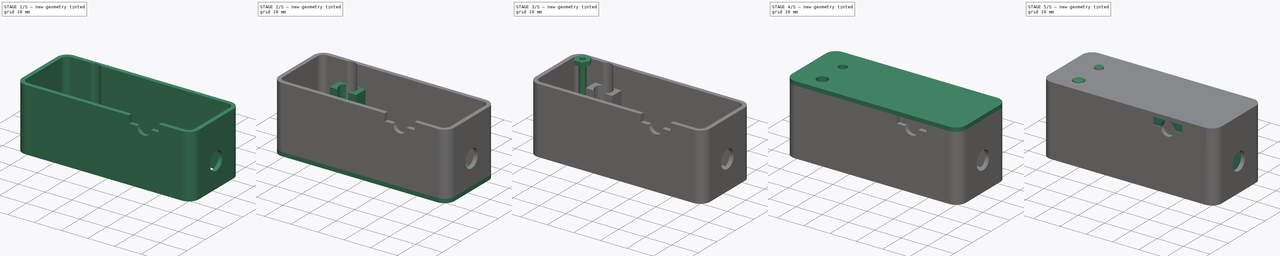
[diagram: build sequence overview — one tinted view per stage of 5, left to right]
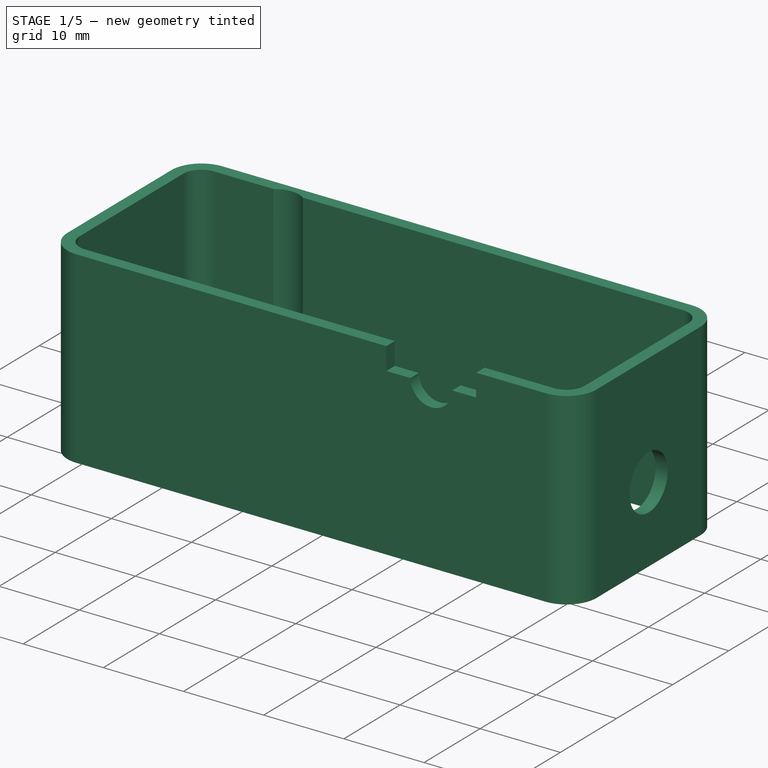
[diagram: stage 1 of 5 — iso view after this stage's code; geometry added in this stage tinted green]
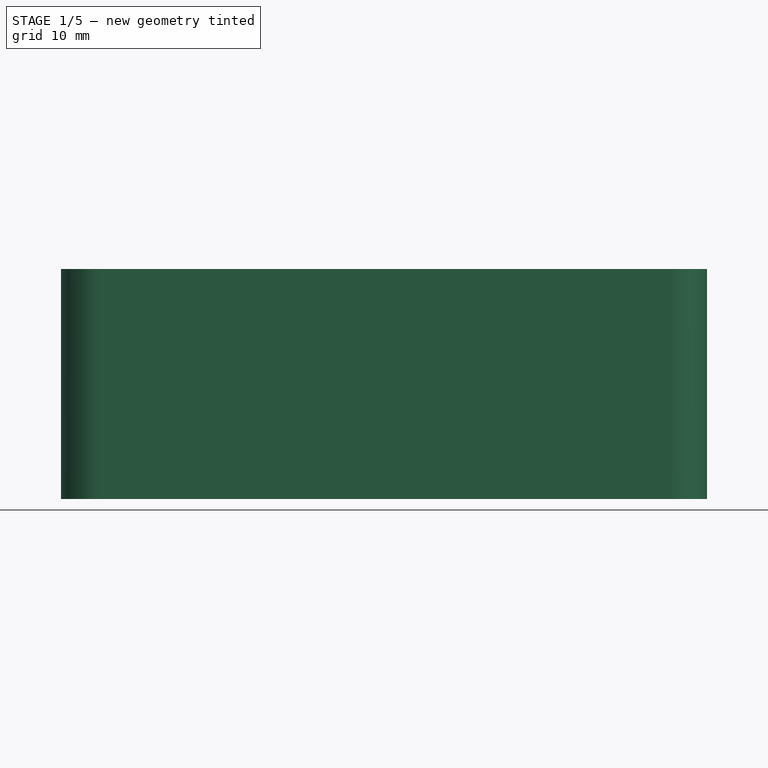
[diagram: stage 1 of 5 — front view after this stage's code; geometry added in this stage tinted green]
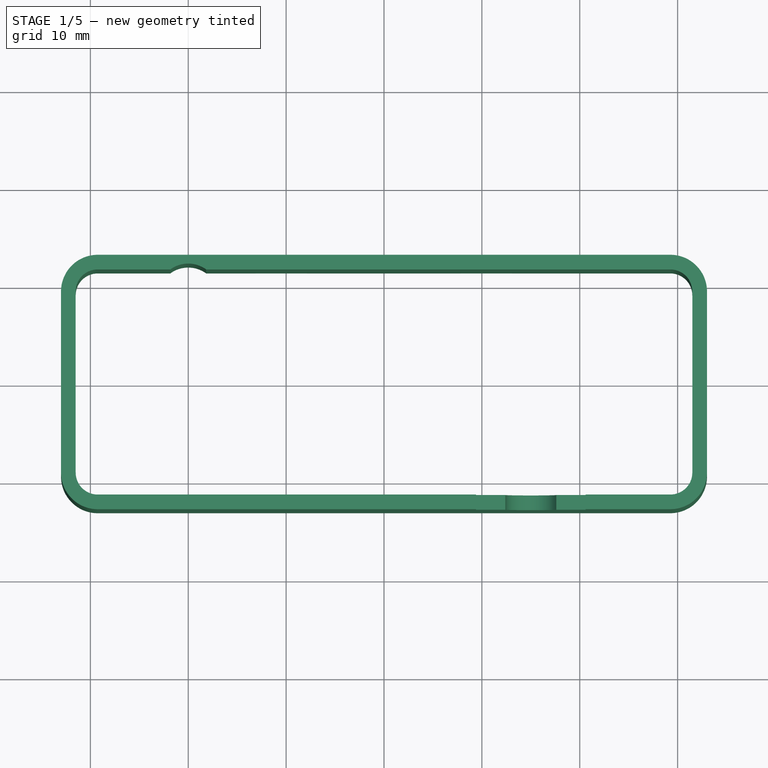
[diagram: stage 1 of 5 — top view after this stage's code; geometry added in this stage tinted green]
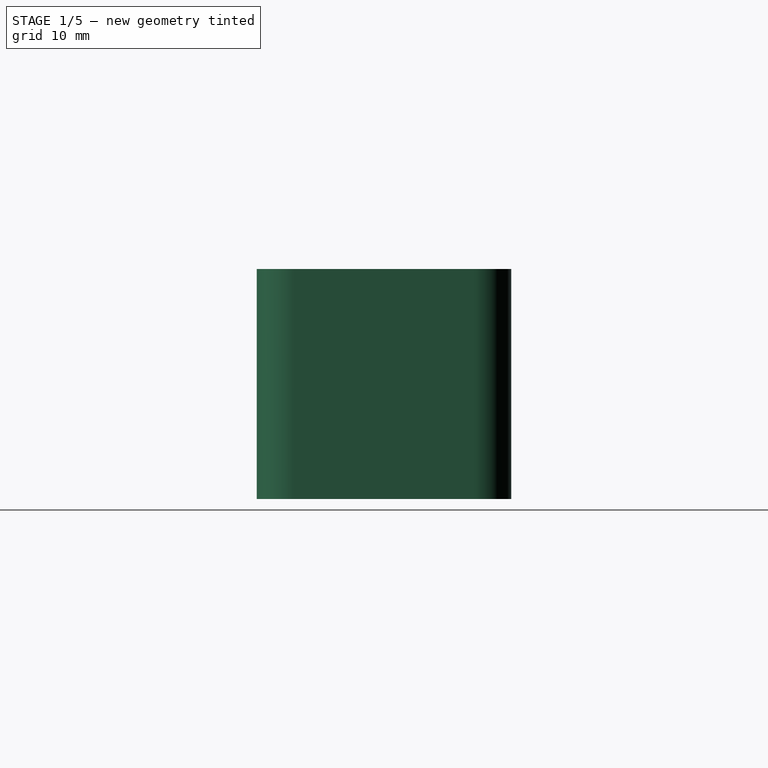
[diagram: stage 1 of 5 — right view after this stage's code; geometry added in this stage tinted green]
FCSTD DOCUMENT  (FreeCAD 0.16R6712 (Git))
Label: snap_case_rev2
License: All rights reserved
LicenseURL: http://en.wikipedia.org/wiki/All_rights_reserved
objects: Sketcher::SketchObject×28, PartDesign::Pad×17, PartDesign::Pocket×10, App::DocumentObjectGroup×4, Part::Feature×3, Part::FeaturePython×3, Spreadsheet::Sheet×1, Part::Revolution×1, App::VRMLObject×1
note: 89 computed .brp shape members not serialized (recipe doc carries the construction recipe); baked Part::Feature solids carry a one-line shape summary decoded from their .brp

FEATURE [Part::Feature] Part__Feature  label="BATTERY_AA"
  Placement = pos=(21.5,-1,-8.4) rot=(0,0,1;3.14159rad)
  shape: bbox 49.8 x 15.16 x 15.16 mm, 318 faces (baked)
FEATURE [Sketcher::SketchObject] Sketch
  Placement = pos=(0,0,6) rot=(0,0,1;0rad)
  expr: Placement.Base.z = Spreadsheet.case_height_above_zero
  expr: Constraints[45] = Spreadsheet.case_outer_width
  expr: Constraints[43] = Spreadsheet.case_outer_fil_angle
  expr: Constraints[42] = Spreadsheet.case_outer_fil_angle
  expr: Constraints[41] = Spreadsheet.case_outer_fil_angle
  expr: Constraints[21] = Spreadsheet.case_inner_width
  expr: Constraints[20] = Spreadsheet.case_inner_length
  expr: Constraints[16] = Spreadsheet.case_inner_fil_rad
  expr: Constraints[44] = Spreadsheet.case_outer_length
  expr: Constraints[15] = Spreadsheet.case_inner_fil_angle
  expr: Constraints[14] = Spreadsheet.case_inner_fil_angle
  expr: Constraints[13] = Spreadsheet.case_inner_fil_angle
  expr: Constraints[40] = Spreadsheet.case_outer_fil_angle
  expr: Constraints[36] = Spreadsheet.case_outer_fil_radius
  expr: Constraints[12] = Spreadsheet.case_inner_fil_angle
  sketch-geometry (16):
    g0: LineSegment StartX=-29.25 StartY=11.5 StartZ=0 EndX=29.25 EndY=11.5 EndZ=0
    g1: ArcOfCircle CenterX=29.25 CenterY=9.25 CenterZ=0 NormalX=0 NormalY=0 NormalZ=1 Radius=2.25 StartAngle=0 EndAngle=1.5708
    g2: LineSegment StartX=31.5 StartY=9.25 StartZ=0 EndX=31.5 EndY=-9.25 EndZ=0
    g3: ArcOfCircle CenterX=29.25 CenterY=-9.25 CenterZ=0 NormalX=0 NormalY=0 NormalZ=1 Radius=2.25 StartAngle=4.71239 EndAngle=6.28319
    g4: LineSegment StartX=29.25 StartY=-11.5 StartZ=0 EndX=-29.25 EndY=-11.5 EndZ=0
    g5: ArcOfCircle CenterX=-29.25 CenterY=-9.25 CenterZ=0 NormalX=0 NormalY=0 NormalZ=1 Radius=2.25 StartAngle=3.14159 EndAngle=4.71239
    g6: LineSegment StartX=-31.5 StartY=-9.25 StartZ=0 EndX=-31.5 EndY=9.25 EndZ=0
    g7: ArcOfCircle CenterX=-29.25 CenterY=9.25 CenterZ=0 NormalX=0 NormalY=0 NormalZ=1 Radius=2.25 StartAngle=1.5708 EndAngle=3.14159
    g8: LineSegment StartX=-29.25 StartY=13 StartZ=0 EndX=29.25 EndY=13 EndZ=0
    g9: ArcOfCircle CenterX=29.25 CenterY=9.25 CenterZ=0 NormalX=0 NormalY=0 NormalZ=1 Radius=3.75 StartAngle=0 EndAngle=1.5708
    g10: LineSegment StartX=33 StartY=9.25 StartZ=0 EndX=33 EndY=-9.25 EndZ=0
    g11: ArcOfCircle CenterX=29.25 CenterY=-9.25 CenterZ=0 NormalX=0 NormalY=0 NormalZ=1 Radius=3.75 StartAngle=4.71239 EndAngle=6.28319
    g12: LineSegment StartX=29.25 StartY=-13 StartZ=0 EndX=-29.25 EndY=-13 EndZ=0
    g13: ArcOfCircle CenterX=-29.25 CenterY=-9.25 CenterZ=0 NormalX=0 NormalY=0 NormalZ=1 Radius=3.75 StartAngle=3.14159 EndAngle=4.71239
    g14: LineSegment StartX=-33 StartY=-9.25 StartZ=0 EndX=-33 EndY=9.25 EndZ=0
    g15: ArcOfCircle CenterX=-29.25 CenterY=9.25 CenterZ=0 NormalX=0 NormalY=0 NormalZ=1 Radius=3.75 StartAngle=1.5708 EndAngle=3.14159
  constraints (48):
    c: Horizontal(g0)
    c: Tangent(g0,g1) = 1.5708
    c: Coincident(g1,g2)
    c: Vertical(g2)
    c: Tangent(g2,g3) = 1.5708
    c: Coincident(g3,g4)
    c: Horizontal(g4)
    c: Tangent(g4,g5) = 1.5708
    c: Coincident(g5,g6)
    c: Vertical(g6)
    c: Tangent(g6,g7) = 1.5708
    c: Coincident(g7,g0)
    c: Angle(g7) = 1.5708
    c: Angle(g1) = 1.5708
    c: Angle(g3) = 1.5708
    c: Angle(g5) = 1.5708
    c: Radius(g7) = 2.25
    c: Equal(g7,g1)
    c: Equal(g7,g3)
    c: Equal(g7,g5)
    c: DistanceX(g6,g1) = 63
    c: DistanceY(g4,g0) = 23
    c: Symmetric(g4,g3,g-2)
    c: Symmetric(g6,g5,g-1)
    c: Horizontal(g8)
    c: Tangent(g8,g9) = 1.5708
    c: Coincident(g9,g10)
    c: Vertical(g10)
    c: Tangent(g10,g11) = 1.5708
    c: Coincident(g11,g12)
    c: Horizontal(g12)
    c: Tangent(g12,g13) = 1.5708
    c: Coincident(g13,g14)
    c: Vertical(g14)
    c: Tangent(g14,g15) = 1.5708
    c: Coincident(g15,g8)
    c: Radius(g15) = 3.75
    c: Equal(g15,g9)
    c: Equal(g15,g11)
    c: Equal(g15,g13)
    c: Angle(g15) = 1.5708
    c: Angle(g9) = 1.5708
    c: Angle(g11) = 1.5708
    c: Angle(g13) = 1.5708
    c: DistanceX(g14,g9) = 66
    c: DistanceY(g12,g8) = 26
    c: Symmetric(g13,g14,g-1)
    c: Symmetric(g8,g8,g-2)
FEATURE [Spreadsheet::Sheet] Spreadsheet
  cells = A1=case, inner, fillet, radius; B1(case_inner_fil_rad)==2.25mm; A2=case, inner, fillet, angle; B2(case_inner_fil_angle)==90deg; A3=case, inner, length; B3(case_inner_length)==63mm; A4=case, inner, width; B4(case_inner_width)==23mm; A5=case, thickness; B5(case_thickness)==1.5mm; A6=case, outer, fillet, radius; B6(case_outer_fil_radius)==B1 + B5; A7=case, outer, fillet, angle; B7(case_outer_fil_angle)==B2; A8=case, outer, length; B8(case_outer_length)==B3 + 2 * B5; A9=case, outer, width; B9(case_outer_width)==B4 + 2 * B5; A10=height above 0 for top face of case; B10(case_height_above_zero)==6mm; A11=case, mount boss radius; B11(case_mnt_boss_radius)==B1; A12=case, mount boss height; B12(case_mnt_boss_height)==B13 - B10 - B16 / 2 - B22; A13=case, extrusion height (Pad); B13(case_pad_height)==23.5mm; A14=case, mount boss, horizontal spacing; B14(case_mnt_horiz)==B3 - 2 * B11; A15=case, mount boss, vertical spacing; B15(case_mnt_vert)==B4 - 2 * B11; A16=PCB thickness; B16(pcb_thick)==1.6mm; A17=PCB thickness half; B17(pcb_thick_half)==B16 / 2; A18=PCB Length; B18(pcb_length)==60mm; A19=PCB Width; B19(pcb_width)==22mm; A20=Mount Hole "X" dim; B20(mnt_hole_x)==56mm; A21=Mount Hole "Y" dim; B21(mnt_hole_y)==18mm; A22=Screw, thickness of head, reduces height of mount boss; B22(screw_head_height)==2mm; A23=Screw, diameter; B23(screw_dia)==2.5mm; A24=Screw, diameter of hole for tapping; B24(screw_dia_tap)==2.05mm; A25=Screw, diameter of hole for M2.5 screw; B25(screw_dia_hole)==2.6mm
FEATURE [PartDesign::Pad] Pad  label="Pad_case"
  Length = 23.5
  Length2 = 100
  Placement = pos=(0,0,6) rot=(0,0,1;0rad)
  Reversed = true
  Sketch = -> Sketch
  Type = 0
  expr: Length = Spreadsheet.case_pad_height
FEATURE [Sketcher::SketchObject] Sketch014
  ExternalGeometry = -> [Pad]
  Placement = pos=(0,-11.5,6) rot=(0,0.707107,0.707107;3.14159rad)
  Support = -> Pad [Face13]
  sketch-geometry (4):
    g0: LineSegment StartX=-4 StartY=-21.5 StartZ=0 EndX=4 EndY=-21.5 EndZ=0
    g1: LineSegment StartX=4 StartY=-21.5 StartZ=0 EndX=4 EndY=-22.3 EndZ=0
    g2: LineSegment StartX=4 StartY=-22.3 StartZ=0 EndX=-4 EndY=-22.3 EndZ=0
    g3: LineSegment StartX=-4 StartY=-22.3 StartZ=0 EndX=-4 EndY=-21.5 EndZ=0
  constraints (12):
    c: Coincident(g0,g1)
    c: Coincident(g1,g2)
    c: Coincident(g2,g3)
    c: Coincident(g3,g0)
    c: Horizontal(g0)
    c: Horizontal(g2)
    c: Vertical(g1)
    c: Vertical(g3)
    c: DistanceX(g0,g0) = 8
    c: Symmetric(g0,g0,g-2)
    c: DistanceY(g3,g3) = 0.8
    c: DistanceY(g-3,g2) = 1.2
FEATURE [PartDesign::Pocket] Pocket001  label="Pocket001_case"
  Length = 0.7
  Placement = pos=(0,0,6) rot=(0,0,1;0rad)
  Sketch = -> Sketch014
  Type = 0
FEATURE [Sketcher::SketchObject] Sketch015
  ExternalGeometry = -> [Pocket001]
  Placement = pos=(0,11.5,6) rot=(1,0,0;1.5708rad)
  Support = -> Pocket001 [Face11]
  sketch-geometry (8):
    g0: LineSegment StartX=-13.1 StartY=-22.05 StartZ=0 EndX=-7.85 EndY=-22.05 EndZ=0
    g1: LineSegment StartX=-7.85 StartY=-22.05 StartZ=0 EndX=-7.85 EndY=-23.05 EndZ=0
    g2: LineSegment StartX=-7.85 StartY=-23.05 StartZ=0 EndX=-13.1 EndY=-23.05 EndZ=0
    g3: LineSegment StartX=-13.1 StartY=-23.05 StartZ=0 EndX=-13.1 EndY=-22.05 EndZ=0
    g4: LineSegment StartX=7.85 StartY=-22.05 StartZ=0 EndX=13.1 EndY=-22.05 EndZ=0
    g5: LineSegment StartX=13.1 StartY=-22.05 StartZ=0 EndX=13.1 EndY=-23.05 EndZ=0
    g6: LineSegment StartX=13.1 StartY=-23.05 StartZ=0 EndX=7.85 EndY=-23.05 EndZ=0
    g7: LineSegment StartX=7.85 StartY=-23.05 StartZ=0 EndX=7.85 EndY=-22.05 EndZ=0
  constraints (23):
    c: Coincident(g0,g1)
    c: Coincident(g1,g2)
    c: Coincident(g2,g3)
    c: Coincident(g3,g0)
    c: Horizontal(g0)
    c: Horizontal(g2)
    c: Vertical(g1)
    c: Vertical(g3)
    c: Coincident(g4,g5)
    c: Coincident(g5,g6)
    c: Coincident(g6,g7)
    c: Coincident(g7,g4)
    c: Horizontal(g4)
    c: Horizontal(g6)
    c: Vertical(g5)
    c: Vertical(g7)
    c: Equal(g0,g4)
    c: Equal(g5,g1)
    c: Symmetric(g0,g4,g-2)
    c: DistanceX(g0,g0) = 5.25
    c: DistanceY(g1,g1) = 1
    c: DistanceY(g-3,g2) = 0.45
    c: DistanceX(g1,g-1) = 7.85
FEATURE [PartDesign::Pocket] Pocket002  label="Pocket002_case"
  Length = 0.5
  Placement = pos=(0,0,6) rot=(0,0,1;0rad)
  Sketch = -> Sketch015
  Type = 0
FEATURE [Sketcher::SketchObject] Sketch020
  Placement = pos=(33,0,6) rot=(0.57735,0.57735,0.57735;2.0944rad)
  Support = -> Pocket002 [Face7]
  sketch-geometry (1):
    g0: Circle CenterX=0 CenterY=-14 CenterZ=0 NormalX=0 NormalY=0 NormalZ=1 Radius=3.4
  constraints (3):
    c: DistanceX(g0,g-1) = 0
    c: DistanceY(g0,g-1) = 14
    c: Radius(g0) = 3.4
FEATURE [PartDesign::Pocket] Pocket005  label="Pocket005_case"
  Length = 5
  Placement = pos=(0,0,6) rot=(0,0,1;0rad)
  Sketch = -> Sketch020
  Type = 2
FEATURE [Sketcher::SketchObject] Sketch022
  Placement = pos=(0,-13,6) rot=(1,0,0;1.5708rad)
  Support = -> Pocket005 [Face9]
  sketch-geometry (6):
    g0: ArcOfCircle CenterX=15 CenterY=-2.8 CenterZ=0 NormalX=0 NormalY=0 NormalZ=1 Radius=2.6 StartAngle=3.14159 EndAngle=6.28319
    g1: LineSegment StartX=9.4 StartY=0.1 StartZ=0 EndX=20.6 EndY=0.1 EndZ=0
    g2: LineSegment StartX=12.4 StartY=-2.8 StartZ=0 EndX=9.4 EndY=-2.8 EndZ=0
    g3: LineSegment StartX=9.4 StartY=-2.8 StartZ=0 EndX=9.4 EndY=0.1 EndZ=0
    g4: LineSegment StartX=17.6 StartY=-2.8 StartZ=0 EndX=20.6 EndY=-2.8 EndZ=0
    g5: LineSegment StartX=20.6 StartY=-2.8 StartZ=0 EndX=20.6 EndY=0.1 EndZ=0
  constraints (19):
    c: DistanceX(g-1,g0) = 15
    c: Radius(g0) = 2.6
    c: DistanceY(g0,g-1) = 2.8
    c: Angle(g0) = 3.14159
    c: DistanceY(g0,g0) = 0
    c: Coincident(g2,g3)
    c: Vertical(g5)
    c: Coincident(g0,g4)
    c: Coincident(g4,g5)
    c: Coincident(g1,g3)
    c: Coincident(g1,g5)
    c: Horizontal(g4)
    c: Horizontal(g2)
    c: Vertical(g3)
    c: Equal(g2,g4)
    c: DistanceX(g2,g2) = 3
    c: Coincident(g2,g0)
    c: Horizontal(g1)
    c: DistanceY(g0,g1) = 2.9
FEATURE [PartDesign::Pocket] Pocket006  label="Pocket006_case"
  Length = 5
  Placement = pos=(0,0,6) rot=(0,0,1;0rad)
  Sketch = -> Sketch022
  Type = 2
FEATURE [Sketcher::SketchObject] Sketch025
  Placement = pos=(0,0,-17.5) rot=(1,0,0;3.14159rad)
  Support = -> Pocket006 [Face5]
  sketch-geometry (1):
    g0: Circle CenterX=-20 CenterY=-9 CenterZ=0 NormalX=0 NormalY=0 NormalZ=1 Radius=3.1
  constraints (3):
    c: Radius(g0) = 3.1
    c: DistanceX(g0,g-1) = 20
    c: DistanceY(g0,g-1) = 9
FEATURE [PartDesign::Pocket] Pocket008  label="Pocket008_case"
  Length = 23.5
  Placement = pos=(0,0,6) rot=(0,0,1;0rad)
  Sketch = -> Sketch025
  Type = 0
  expr: Length = Spreadsheet.case_pad_height
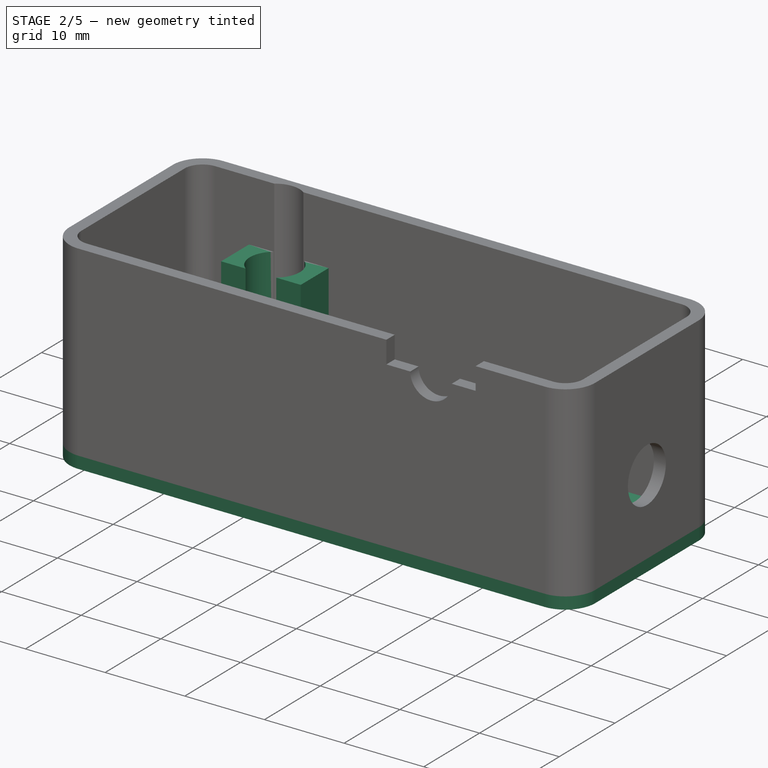
[diagram: stage 2 of 5 — iso view after this stage's code; geometry added in this stage tinted green]
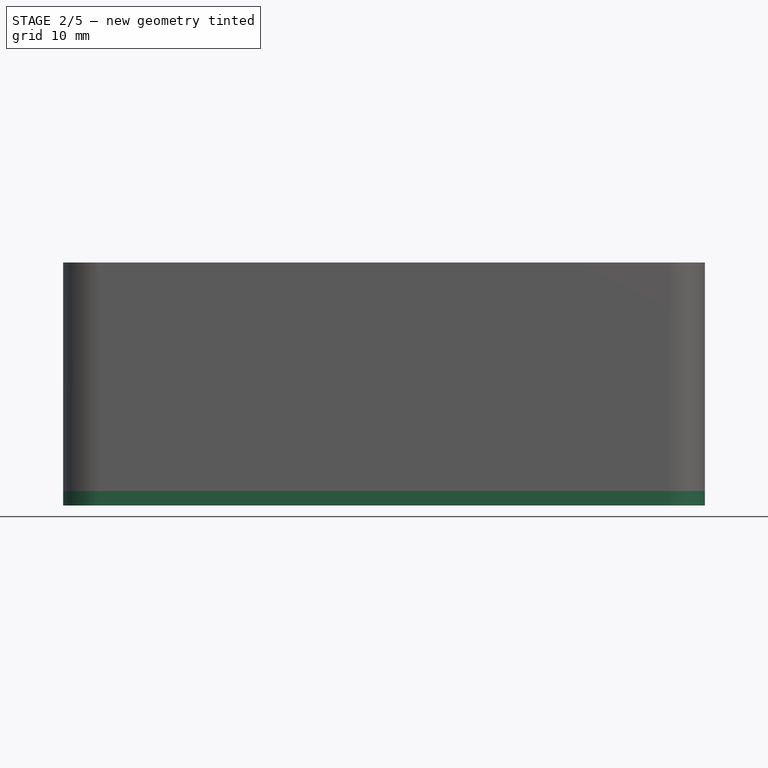
[diagram: stage 2 of 5 — front view after this stage's code; geometry added in this stage tinted green]
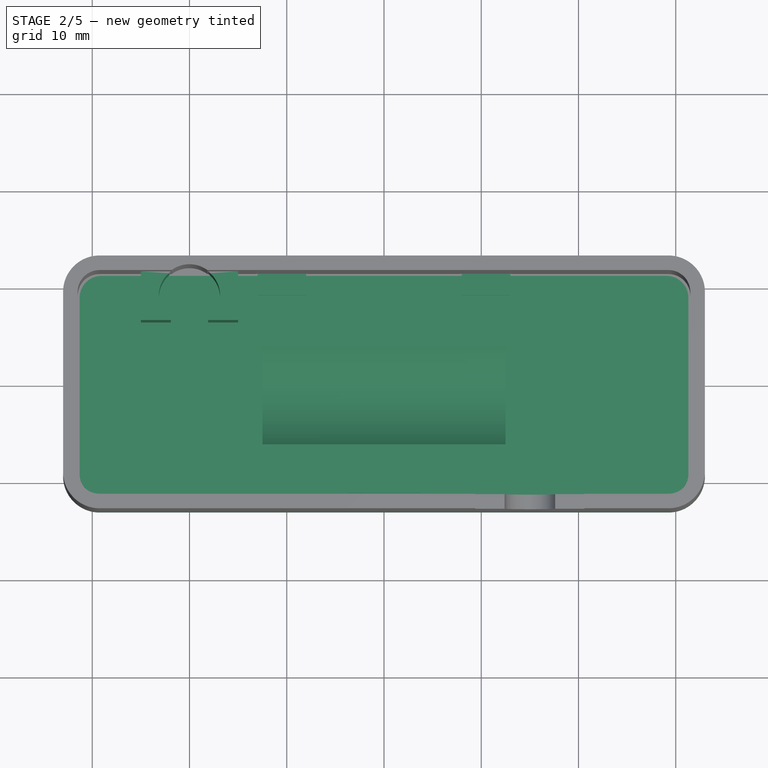
[diagram: stage 2 of 5 — top view after this stage's code; geometry added in this stage tinted green]
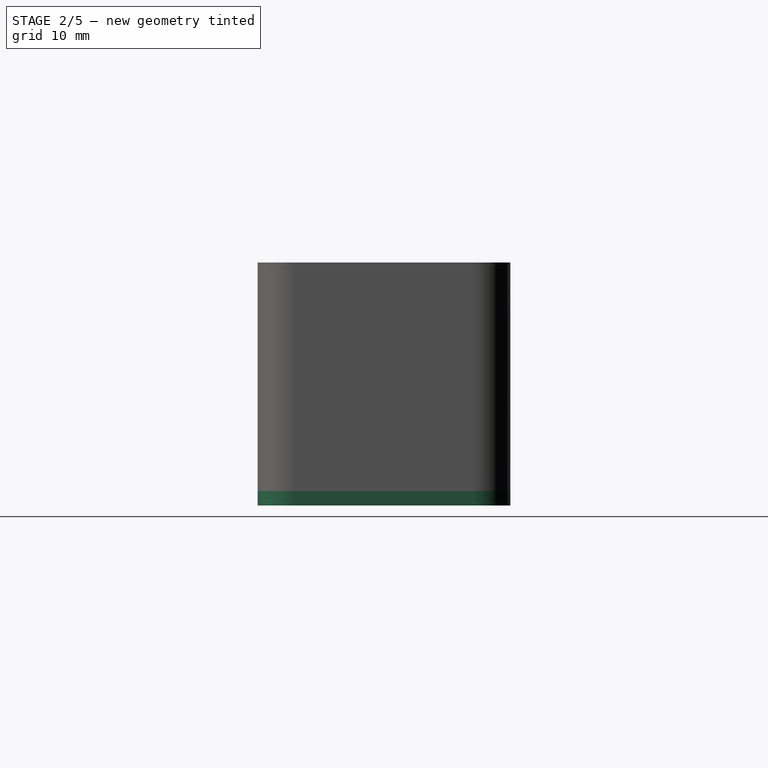
[diagram: stage 2 of 5 — right view after this stage's code; geometry added in this stage tinted green]
FEATURE [Sketcher::SketchObject] Sketch010
  Placement = pos=(0,0,-19) rot=(0,0,1;0rad)
  expr: Constraints[18] = Spreadsheet.case_outer_fil_angle
  expr: Constraints[16] = Spreadsheet.case_outer_fil_angle
  expr: Constraints[21] = Spreadsheet.case_outer_width
  expr: Constraints[20] = Spreadsheet.case_outer_length
  expr: Constraints[17] = Spreadsheet.case_outer_fil_angle
  expr: Constraints[19] = Spreadsheet.case_outer_fil_angle
  expr: Constraints[12] = Spreadsheet.case_outer_fil_radius
  sketch-geometry (8):
    g0: LineSegment StartX=-29.25 StartY=13 StartZ=0 EndX=29.25 EndY=13 EndZ=0
    g1: ArcOfCircle CenterX=29.25 CenterY=9.25 CenterZ=0 NormalX=0 NormalY=0 NormalZ=1 Radius=3.75 StartAngle=0 EndAngle=1.5708
    g2: LineSegment StartX=33 StartY=9.25 StartZ=0 EndX=33 EndY=-9.25 EndZ=0
    g3: ArcOfCircle CenterX=29.25 CenterY=-9.25 CenterZ=0 NormalX=0 NormalY=0 NormalZ=1 Radius=3.75 StartAngle=4.71239 EndAngle=6.28319
    g4: LineSegment StartX=29.25 StartY=-13 StartZ=0 EndX=-29.25 EndY=-13 EndZ=0
    g5: ArcOfCircle CenterX=-29.25 CenterY=-9.25 CenterZ=0 NormalX=0 NormalY=0 NormalZ=1 Radius=3.75 StartAngle=3.14159 EndAngle=4.71239
    g6: LineSegment StartX=-33 StartY=-9.25 StartZ=0 EndX=-33 EndY=9.25 EndZ=0
    g7: ArcOfCircle CenterX=-29.25 CenterY=9.25 CenterZ=0 NormalX=0 NormalY=0 NormalZ=1 Radius=3.75 StartAngle=1.5708 EndAngle=3.14159
  constraints (24):
    c: Horizontal(g0)
    c: Tangent(g0,g1) = 1.5708
    c: Coincident(g1,g2)
    c: Vertical(g2)
    c: Tangent(g2,g3) = 1.5708
    c: Coincident(g3,g4)
    c: Horizontal(g4)
    c: Tangent(g4,g5) = 1.5708
    c: Coincident(g5,g6)
    c: Vertical(g6)
    c: Tangent(g6,g7) = 1.5708
    c: Coincident(g7,g0)
    c: Radius(g7) = 3.75
    c: Equal(g7,g1)
    c: Equal(g7,g3)
    c: Equal(g7,g5)
    c: Angle(g7) = 1.5708
    c: Angle(g1) = 1.5708
    c: Angle(g3) = 1.5708
    c: Angle(g5) = 1.5708
    c: DistanceX(g6,g1) = 66
    c: DistanceY(g4,g0) = 26
    c: Symmetric(g5,g6,g-1)
    c: Symmetric(g0,g0,g-2)
FEATURE [PartDesign::Pad] Pad007  label="Pad007_bot"
  Length = 1.5
  Length2 = 100
  Placement = pos=(0,0,-19) rot=(0,0,1;0rad)
  Sketch = -> Sketch010
  Type = 0
FEATURE [Sketcher::SketchObject] Sketch011
  Placement = pos=(0,0,-17.5) rot=(0,0,1;0rad)
  Support = -> Pad007 [Face10]
  expr: Constraints[16] = Spreadsheet.case_inner_fil_rad
  expr: Constraints[21] = Spreadsheet.case_inner_width - 0.4mm
  expr: Constraints[20] = Spreadsheet.case_inner_length - 0.4mm
  expr: Placement.Base.z = Spreadsheet.case_height_above_zero
  expr: Constraints[14] = Spreadsheet.case_inner_fil_angle
  expr: Constraints[12] = Spreadsheet.case_inner_fil_angle
  expr: Constraints[13] = Spreadsheet.case_inner_fil_angle
  expr: Constraints[15] = Spreadsheet.case_inner_fil_angle
  sketch-geometry (8):
    g0: LineSegment StartX=-29.05 StartY=11.3 StartZ=0 EndX=29.05 EndY=11.3 EndZ=0
    g1: ArcOfCircle CenterX=29.05 CenterY=9.05 CenterZ=0 NormalX=0 NormalY=0 NormalZ=1 Radius=2.25 StartAngle=0 EndAngle=1.5708
    g2: LineSegment StartX=31.3 StartY=9.05 StartZ=0 EndX=31.3 EndY=-9.05 EndZ=0
    g3: ArcOfCircle CenterX=29.05 CenterY=-9.05 CenterZ=0 NormalX=0 NormalY=0 NormalZ=1 Radius=2.25 StartAngle=4.71239 EndAngle=6.28319
    g4: LineSegment StartX=29.05 StartY=-11.3 StartZ=0 EndX=-29.05 EndY=-11.3 EndZ=0
    g5: ArcOfCircle CenterX=-29.05 CenterY=-9.05 CenterZ=0 NormalX=0 NormalY=0 NormalZ=1 Radius=2.25 StartAngle=3.14159 EndAngle=4.71239
    g6: LineSegment StartX=-31.3 StartY=-9.05 StartZ=0 EndX=-31.3 EndY=9.05 EndZ=0
    g7: ArcOfCircle CenterX=-29.05 CenterY=9.05 CenterZ=0 NormalX=0 NormalY=0 NormalZ=1 Radius=2.25 StartAngle=1.5708 EndAngle=3.14159
  constraints (24):
    c: Horizontal(g0)
    c: Tangent(g0,g1) = 1.5708
    c: Coincident(g1,g2)
    c: Vertical(g2)
    c: Tangent(g2,g3) = 1.5708
    c: Coincident(g3,g4)
    c: Horizontal(g4)
    c: Tangent(g4,g5) = 1.5708
    c: Coincident(g5,g6)
    c: Vertical(g6)
    c: Tangent(g6,g7) = 1.5708
    c: Coincident(g7,g0)
    c: Angle(g7) = 1.5708
    c: Angle(g1) = 1.5708
    c: Angle(g3) = 1.5708
    c: Angle(g5) = 1.5708
    c: Radius(g7) = 2.25
    c: Equal(g7,g1)
    c: Equal(g7,g3)
    c: Equal(g7,g5)
    c: DistanceX(g6,g1) = 62.6
    c: DistanceY(g4,g0) = 22.6
    c: Symmetric(g4,g3,g-2)
    c: Symmetric(g6,g5,g-1)
FEATURE [PartDesign::Pad] Pad008  label="Pad008_bot"
  Length = 0.5
  Length2 = 100
  Placement = pos=(0,0,-19) rot=(0,0,1;0rad)
  Sketch = -> Sketch011
  Type = 0
FEATURE [Sketcher::SketchObject] Sketch012
  ExternalGeometry = -> [Pad008]
  Placement = pos=(0,0,-17) rot=(0,0,1;0rad)
  Support = -> Pad008 [Face19]
  sketch-geometry (12):
    g0: LineSegment StartX=-13 StartY=11.8 StartZ=0 EndX=-8 EndY=11.8 EndZ=0
    g1: LineSegment StartX=-8 StartY=11.8 StartZ=0 EndX=-8 EndY=9.3 EndZ=0
    g2: LineSegment StartX=-8 StartY=9.3 StartZ=0 EndX=-13 EndY=9.3 EndZ=0
    g3: LineSegment StartX=-13 StartY=9.3 StartZ=0 EndX=-13 EndY=11.8 EndZ=0
    g4: LineSegment StartX=8 StartY=9.3 StartZ=0 EndX=13 EndY=9.3 EndZ=0
    g5: LineSegment StartX=13 StartY=9.3 StartZ=0 EndX=13 EndY=11.8 EndZ=0
    g6: LineSegment StartX=13 StartY=11.8 StartZ=0 EndX=8 EndY=11.8 EndZ=0
    g7: LineSegment StartX=8 StartY=11.8 StartZ=0 EndX=8 EndY=9.3 EndZ=0
    g8: LineSegment StartX=-3.75 StartY=-8.5 StartZ=0 EndX=3.75 EndY=-8.5 EndZ=0
    g9: LineSegment StartX=3.75 StartY=-8.5 StartZ=0 EndX=3.75 EndY=-11 EndZ=0
    g10: LineSegment StartX=3.75 StartY=-11 StartZ=0 EndX=-3.75 EndY=-11 EndZ=0
    g11: LineSegment StartX=-3.75 StartY=-11 StartZ=0 EndX=-3.75 EndY=-8.5 EndZ=0
  constraints (35):
    c: Coincident(g0,g1)
    c: Coincident(g1,g2)
    c: Coincident(g2,g3)
    c: Coincident(g3,g0)
    c: Horizontal(g0)
    c: Horizontal(g2)
    c: Vertical(g1)
    c: Vertical(g3)
    c: Coincident(g4,g5)
    c: Coincident(g5,g6)
    c: Coincident(g6,g7)
    c: Coincident(g7,g4)
    c: Horizontal(g4)
    c: Horizontal(g6)
    c: Vertical(g5)
    c: Vertical(g7)
    c: Equal(g0,g4)
    c: DistanceX(g2,g2) = 5
    c: DistanceY(g3,g3) = 2.5
    c: DistanceX(g1,g-1) = 8
    c: Coincident(g8,g9)
    c: Coincident(g9,g10)
    c: Coincident(g10,g11)
    c: Coincident(g11,g8)
    c: Horizontal(g8)
    c: Horizontal(g10)
    c: Vertical(g9)
    c: Vertical(g11)
    c: DistanceY(g11,g11) = 2.5
    c: DistanceX(g8,g8) = 7.5
    c: Symmetric(g8,g8,g-2)
    c: DistanceY(g8,g-1) = 8.5
    c: Symmetric(g6,g0,g-2)
    c: DistanceY(g-5,g0) = 0.5
    c: Equal(g7,g1)
FEATURE [PartDesign::Pad] Pad009  label="Pad009_bot"
  Length = 0.8
  Length2 = 100
  Placement = pos=(0,0,-19) rot=(0,0,1;0rad)
  Sketch = -> Sketch012
  Type = 0
FEATURE [Sketcher::SketchObject] Sketch026
  Placement = pos=(0,0,-17.5) rot=(1,0,0;3.14159rad)
  Support = -> Pocket008 [Face5]
  sketch-geometry (11):
    g0: LineSegment StartX=-15 StartY=-6.5 StartZ=0 EndX=-18.0836 EndY=-6.5 EndZ=0
    g1: LineSegment StartX=-25 StartY=-11.5 StartZ=0 EndX=-21.9164 EndY=-11.5 EndZ=0
    g2: LineSegment StartX=-21.9164 StartY=-6.5 StartZ=0 EndX=-25 EndY=-6.5 EndZ=0
    g3: LineSegment StartX=-18.0836 StartY=-11.5 StartZ=0 EndX=-15 EndY=-11.5 EndZ=0
    g4: LineSegment StartX=-25 StartY=-6.5 StartZ=0 EndX=-25 EndY=-11.5 EndZ=0
    g5: LineSegment StartX=-15 StartY=-6.5 StartZ=0 EndX=-15 EndY=-11.5 EndZ=0
    g6: ArcOfCircle CenterX=-20 CenterY=-9 CenterZ=0 NormalX=0 NormalY=0 NormalZ=1 Radius=3.15 StartAngle=3.14159 EndAngle=4.05838
    g7: ArcOfCircle CenterX=-20 CenterY=-9 CenterZ=0 NormalX=0 NormalY=0 NormalZ=1 Radius=3.15 StartAngle=2.22481 EndAngle=3.14159
    g8: ArcOfCircle CenterX=-20 CenterY=-9 CenterZ=0 NormalX=0 NormalY=0 NormalZ=1 Radius=3.15 StartAngle=0 EndAngle=0.916787
    g9: ArcOfCircle CenterX=-20 CenterY=-9 CenterZ=0 NormalX=0 NormalY=0 NormalZ=1 Radius=3.15 StartAngle=5.3664 EndAngle=6.28319
    g10: Circle [constr] CenterX=-20 CenterY=-9 CenterZ=0 NormalX=0 NormalY=0 NormalZ=1 Radius=3.15
  constraints (37):
    c: Horizontal(g0)
    c: Horizontal(g1)
    c: Horizontal(g3)
    c: Horizontal(g2)
    c: Equal(g2,g0)
    c: Equal(g0,g3)
    c: Equal(g3,g1)
    c: Vertical(g4)
    c: Vertical(g5)
    c: Radius(g7) = 3.15
    c: Equal(g7,g6)
    c: Equal(g7,g8)
    c: Equal(g7,g9)
    c: Coincident(g6,g7)
    c: Coincident(g6,g8)
    c: Coincident(g6,g9)
    c: Coincident(g6,g7)
    c: DistanceY(g6,g6) = 0
    c: Coincident(g8,g9)
    c: DistanceY(g6,g8) = 0
    c: DistanceY(g9,g6) = 2.5
    c: DistanceY(g6,g6) = 2.5
    c: Coincident(g1,g6)
    c: Coincident(g3,g9)
    c: DistanceY(g6,g8) = 2.5
    c: DistanceY(g6,g7) = 2.5
    c: Coincident(g2,g7)
    c: Coincident(g0,g8)
    c: Coincident(g2,g4)
    c: Coincident(g1,g4)
    c: Coincident(g0,g5)
    c: Coincident(g3,g5)
    c: DistanceY(g6,g-1) = 9
    c: DistanceX(g6,g-1) = 20
    c: DistanceX(g1,g3) = 10
    c: Radius(g10) = 3.15
    c: Coincident(g10,g6)
FEATURE [PartDesign::Pad] Pad015  label="Pad015_case"
  Length = 15.75
  Length2 = 100
  Placement = pos=(0,0,6) rot=(0,0,1;0rad)
  Reversed = true
  Sketch = -> Sketch026
  Type = 0
  UpToFace = -> Pocket008 [Face5]
FEATURE [Sketcher::SketchObject] Sketch028
  Placement = pos=(0,0,0) rot=(0.57735,-0.57735,-0.57735;2.0944rad)
  sketch-geometry (4):
    g0: LineSegment StartX=-4 StartY=-17.5 StartZ=0 EndX=6 EndY=-17.5 EndZ=0
    g1: LineSegment StartX=6 StartY=-17.5 StartZ=0 EndX=6 EndY=-14.245 EndZ=0
    g2: LineSegment StartX=-4 StartY=-17.5 StartZ=0 EndX=-4 EndY=-14.245 EndZ=0
    g3: ArcOfCircle CenterX=1 CenterY=-8 CenterZ=0 NormalX=0 NormalY=0 NormalZ=1 Radius=8 StartAngle=4.03726 EndAngle=5.38752
  constraints (13):
    c: Horizontal(g0)
    c: Vertical(g1)
    c: Vertical(g2)
    c: DistanceX(g0,g0) = 10
    c: Coincident(g0,g2)
    c: Coincident(g0,g1)
    c: Radius(g3) = 8
    c: DistanceX(g-1,g3) = 1
    c: DistanceX(g0,g-1) = 4
    c: DistanceY(g0,g-1) = 17.5
    c: DistanceY(g0,g3) = 9.5
    c: Coincident(g3,g2)
    c: Coincident(g1,g3)
FEATURE [PartDesign::Pad] Pad017  label="Pad017_bot"
  Length = 25
  Length2 = 100
  Midplane = true
  Placement = pos=(0,0,0) rot=(0.57735,-0.57735,-0.57735;2.0944rad)
  Sketch = -> Sketch028
  Type = 0
FEATURE [App::DocumentObjectGroup] Group002  label="bottom"
  Group = -> [Pad007,Pad008,Pad009,Pad010,Pocket003,Pocket004,Pad013,Pocket007,Pad017]
FEATURE [Sketcher::SketchObject] Sketch029
  ExternalGeometry = -> [Pad015]
  Placement = pos=(0,0,-17.5) rot=(1,0,0;3.14159rad)
  Support = -> Pad015 [Face5]
  sketch-geometry (4):
    g0: LineSegment StartX=-25 StartY=-6.5 StartZ=0 EndX=-15 EndY=-6.5 EndZ=0
    g1: LineSegment StartX=-15 StartY=-6.5 StartZ=0 EndX=-15 EndY=-11.5 EndZ=0
    g2: LineSegment StartX=-15 StartY=-11.5 StartZ=0 EndX=-25 EndY=-11.5 EndZ=0
    g3: LineSegment StartX=-25 StartY=-11.5 StartZ=0 EndX=-25 EndY=-6.5 EndZ=0
  constraints (10):
    c: Coincident(g0,g1)
    c: Coincident(g1,g2)
    c: Coincident(g2,g3)
    c: Coincident(g3,g0)
    c: Horizontal(g0)
    c: Horizontal(g2)
    c: Vertical(g1)
    c: Vertical(g3)
    c: Coincident(g0,g-3)
    c: Coincident(g1,g-4)
FEATURE [PartDesign::Pocket] Pocket009  label="Pocket009_case"
  Length = 0.7
  Placement = pos=(0,0,6) rot=(0,0,1;0rad)
  Sketch = -> Sketch029
  Type = 0
FEATURE [App::DocumentObjectGroup] Group001  label="case"
  Group = -> [Pad,Pocket001,Pocket002,Pocket005,Pad011,Pad012,Pocket006,Pocket008,Pad015,Pad001,Pocket009]
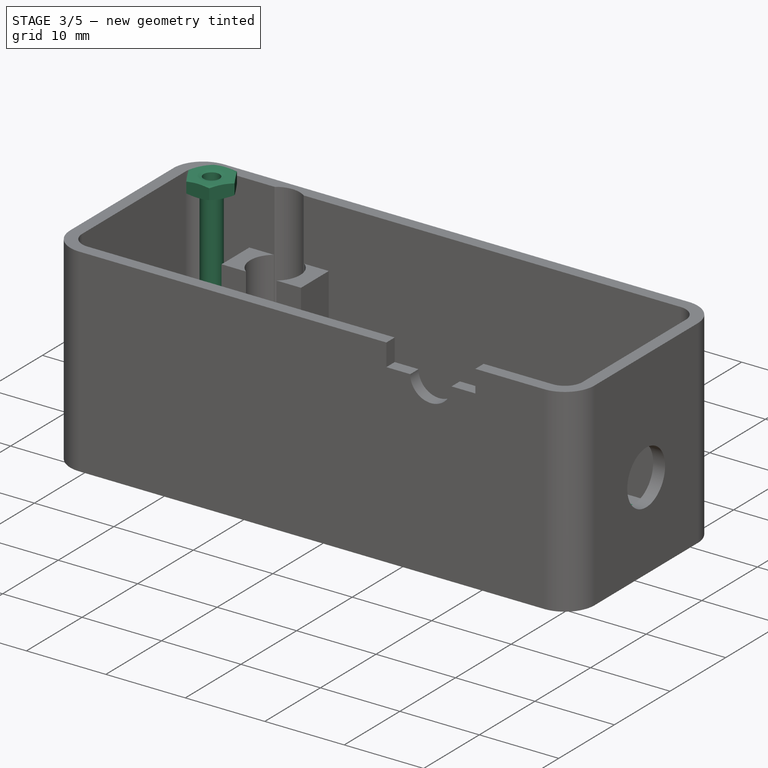
[diagram: stage 3 of 5 — iso view after this stage's code; geometry added in this stage tinted green]
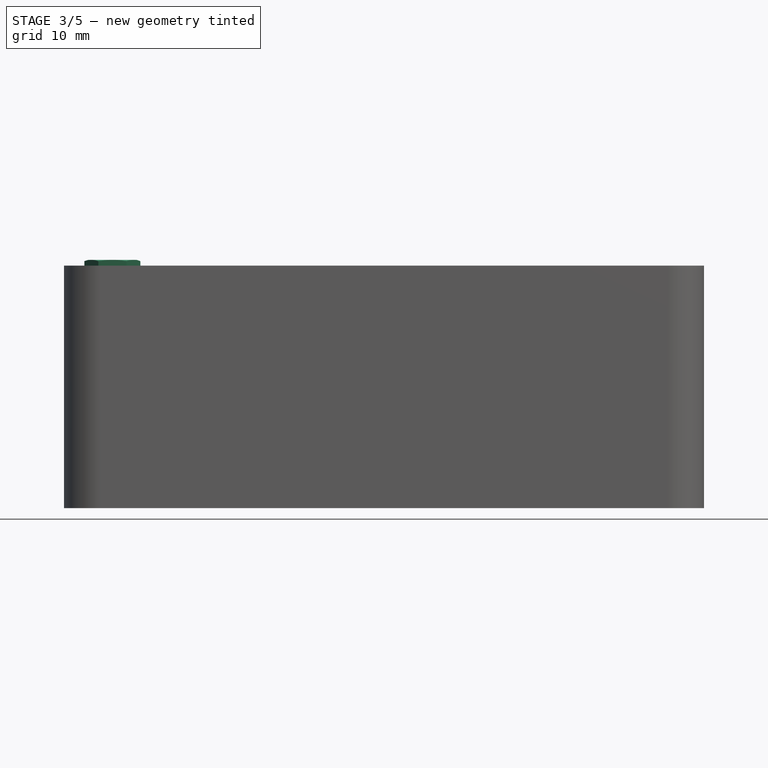
[diagram: stage 3 of 5 — front view after this stage's code; geometry added in this stage tinted green]
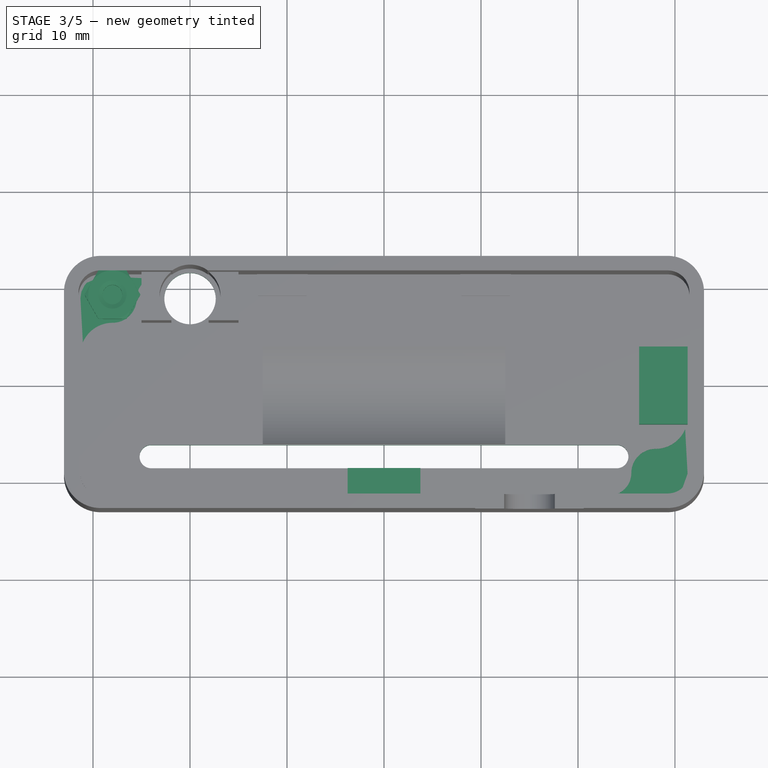
[diagram: stage 3 of 5 — top view after this stage's code; geometry added in this stage tinted green]
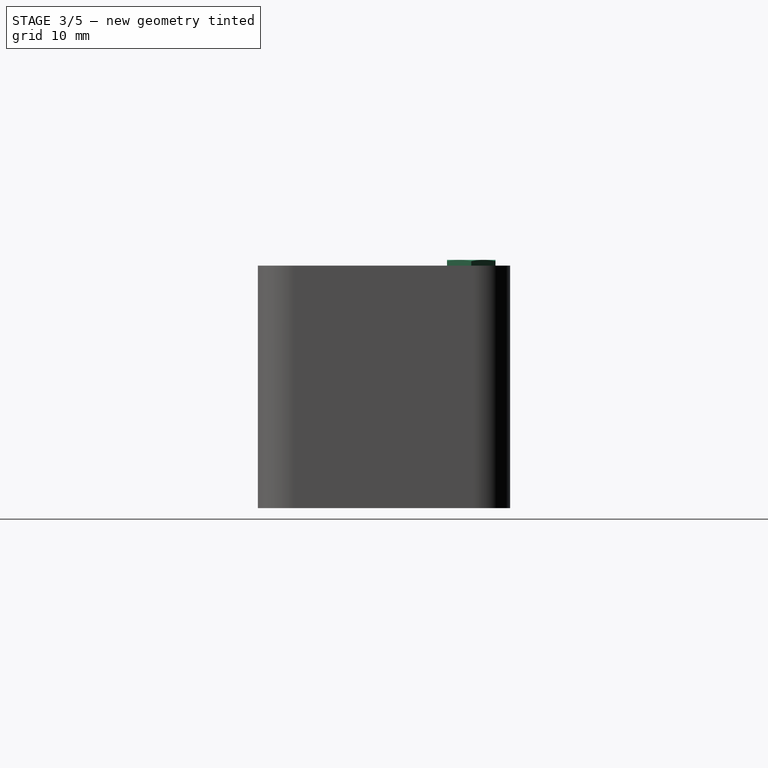
[diagram: stage 3 of 5 — right view after this stage's code; geometry added in this stage tinted green]
FEATURE [Part::FeaturePython] Screw001  label="M2.5x20-Screw"  # Fasteners workbench fastener (typed FeaturePython)
  Placement = pos=(-28,9,-15.5) rot=(1,0,0;3.14159rad)
  diameter = 1
  invert = false
  length = 8
  matchOuter = false
  offset = 0
  thread = false
  type = 19
FEATURE [Sketcher::SketchObject] Sketch013
  ExternalGeometry = -> [Pad009]
  Placement = pos=(0,0,-16.2) rot=(0,0,1;0rad)
  Support = -> Pad009 [Face36]
  sketch-geometry (4):
    g0: LineSegment StartX=-3.75 StartY=-8.5 StartZ=0 EndX=3.75 EndY=-8.5 EndZ=0
    g1: LineSegment StartX=3.75 StartY=-8.5 StartZ=0 EndX=3.75 EndY=-11.5 EndZ=0
    g2: LineSegment StartX=3.75 StartY=-11.5 StartZ=0 EndX=-3.75 EndY=-11.5 EndZ=0
    g3: LineSegment StartX=-3.75 StartY=-11.5 StartZ=0 EndX=-3.75 EndY=-8.5 EndZ=0
FEATURE [PartDesign::Pad] Pad010  label="Pad010_bot"
  Length = 0.5
  Length2 = 100
  Placement = pos=(0,0,-19) rot=(0,0,1;0rad)
  Sketch = -> Sketch013
  Type = 0
FEATURE [Sketcher::SketchObject] Sketch016
  ExternalGeometry = -> [Pad010]
  Placement = pos=(0,0,-17) rot=(0,0,1;0rad)
  Support = -> Pad010 [Face19]
  expr: Constraints[38] = Spreadsheet.mnt_hole_y
  expr: Constraints[40] = Spreadsheet.mnt_hole_y / 2
  expr: Constraints[37] = Spreadsheet.mnt_hole_x
  expr: Constraints[39] = Spreadsheet.mnt_hole_x / 2
  sketch-geometry (14):
    g0: ArcOfCircle CenterX=28 CenterY=-9 CenterZ=0 NormalX=0 NormalY=0 NormalZ=1 Radius=2.5 StartAngle=1.5708 EndAngle=3.14159
    g1: ArcOfCircle CenterX=23.2 CenterY=-9.00001 CenterZ=0 NormalX=0 NormalY=0 NormalZ=1 Radius=2.29999 StartAngle=4.71239 EndAngle=6.28319
    g2: ArcOfCircle CenterX=28 CenterY=-3.2 CenterZ=0 NormalX=0 NormalY=0 NormalZ=1 Radius=3.3 StartAngle=4.71239 EndAngle=6.28318
    g3: LineSegment StartX=31.3 StartY=-3.20002 StartZ=0 EndX=31.5 EndY=-3.20002 EndZ=0
    g4: LineSegment StartX=31.5 StartY=-3.20002 StartZ=0 EndX=31.5 EndY=-11.5 EndZ=0
    g5: LineSegment StartX=31.5 StartY=-11.5 StartZ=0 EndX=23.2 EndY=-11.5 EndZ=0
    g6: LineSegment StartX=23.2 StartY=-11.5 StartZ=0 EndX=23.2 EndY=-11.3 EndZ=0
    g7: LineSegment StartX=-23.2 StartY=11.3 StartZ=0 EndX=-23.2 EndY=11.5 EndZ=0
    g8: LineSegment StartX=-23.2 StartY=11.5 StartZ=0 EndX=-31.5 EndY=11.5 EndZ=0
    g9: LineSegment StartX=-31.5 StartY=11.5 StartZ=0 EndX=-31.5 EndY=3.20002 EndZ=0
    g10: LineSegment StartX=-31.5 StartY=3.20002 StartZ=0 EndX=-31.3 EndY=3.20002 EndZ=0
    g11: ArcOfCircle CenterX=-23.2 CenterY=9.00001 CenterZ=0 NormalX=0 NormalY=0 NormalZ=1 Radius=2.29999 StartAngle=1.5708 EndAngle=3.1416
    g12: ArcOfCircle CenterX=-28 CenterY=3.20001 CenterZ=0 NormalX=0 NormalY=0 NormalZ=1 Radius=3.29999 StartAngle=1.57079 EndAngle=3.14159
    g13: ArcOfCircle CenterX=-28 CenterY=9 CenterZ=0 NormalX=0 NormalY=0 NormalZ=1 Radius=2.5 StartAngle=4.71239 EndAngle=6.28318
  constraints (48):
    c: Coincident(g1,g0)
    c: Coincident(g0,g2)
    c: Coincident(g6,g1)
    c: Coincident(g2,g3)
    c: Coincident(g4,g3)
    c: Coincident(g4,g5)
    c: Coincident(g6,g5)
    c: Coincident(g7,g8)
    c: Coincident(g8,g9)
    c: Coincident(g10,g9)
    c: Vertical(g7)
    c: Horizontal(g8)
    c: Vertical(g9)
    c: Horizontal(g10)
    c: Horizontal(g5)
    c: Vertical(g4)
    c: Horizontal(g3)
    c: Vertical(g6)
    c: Coincident(g11,g7)
    c: Coincident(g12,g10)
    c: Coincident(g13,g11)
    c: Coincident(g13,g12)
    c: Angle(g13) = 1.5708
    c: Angle(g0) = 1.5708
    c: Angle(g1) = 1.5708
    c: Angle(g12) = 1.5708
    c: Angle(g11) = 1.5708
    c: Tangent(g11,g13)
    c: Tangent(g13,g12)
    c: Tangent(g2,g0)
    c: Tangent(g0,g1)
    c: Equal(g7,g10)
    c: Equal(g10,g3)
    c: Equal(g3,g6)
    c: Equal(g9,g8)
    c: Equal(g8,g4)
    c: Equal(g4,g5)
    c: DistanceX(g13,g0) = 56
    c: DistanceY(g0,g13) = 18
    c: DistanceX(g13,g-1) = 28
    c: DistanceY(g-1,g13) = 9
    c: DistanceY(g-9,g7) = 0
    c: DistanceX(g-10,g10) = 0
    c: Radius(g13) = 2.5
    c: DistanceX(g10,g10) = 0.2
    c: Radius(g0) = 2.5
    c: DistanceY(g1,g-7) = 0
    c: DistanceX(g-8,g2) = 0
FEATURE [PartDesign::Pocket] Pocket003  label="Pocket003_bot"
  Length = 0.5
  Placement = pos=(0,0,-19) rot=(0,0,1;0rad)
  Sketch = -> Sketch016
  Type = 0
FEATURE [Sketcher::SketchObject] Sketch017
  ExternalGeometry = -> [Pocket003]
  Placement = pos=(0,0,-17) rot=(0,0,1;0rad)
  Support = -> Pocket003 [Face21]
  sketch-geometry (4):
    g0: ArcOfCircle CenterX=-24 CenterY=-7.3 CenterZ=0 NormalX=0 NormalY=0 NormalZ=1 Radius=1.2 StartAngle=1.5708 EndAngle=4.71239
    g1: ArcOfCircle CenterX=24 CenterY=-7.3 CenterZ=0 NormalX=0 NormalY=0 NormalZ=1 Radius=1.2 StartAngle=4.71239 EndAngle=7.85398
    g2: LineSegment StartX=-24 StartY=-8.5 StartZ=0 EndX=24 EndY=-8.5 EndZ=0
    g3: LineSegment StartX=-24 StartY=-6.1 StartZ=0 EndX=24 EndY=-6.1 EndZ=0
FEATURE [PartDesign::Pocket] Pocket004  label="Pocket004_bot"
  Length = 5
  Placement = pos=(0,0,-19) rot=(0,0,1;0rad)
  Sketch = -> Sketch017
  Type = 2
FEATURE [Sketcher::SketchObject] Sketch021
  ExternalGeometry = -> [Pocket004]
  Placement = pos=(0,0,-17) rot=(0,0,1;0rad)
  Support = -> Pocket004 [Face23]
  sketch-geometry (4):
    g0: LineSegment StartX=26.3 StartY=4 StartZ=0 EndX=31.3 EndY=4 EndZ=0
    g1: LineSegment StartX=31.3 StartY=4 StartZ=0 EndX=31.3 EndY=-4 EndZ=0
    g2: LineSegment StartX=31.3 StartY=-4 StartZ=0 EndX=26.3 EndY=-4 EndZ=0
    g3: LineSegment StartX=26.3 StartY=-4 StartZ=0 EndX=26.3 EndY=4 EndZ=0
  constraints (12):
    c: Coincident(g0,g1)
    c: Coincident(g1,g2)
    c: Coincident(g2,g3)
    c: Coincident(g3,g0)
    c: Horizontal(g0)
    c: Horizontal(g2)
    c: Vertical(g1)
    c: Vertical(g3)
    c: Symmetric(g0,g2,g-1)
    c: DistanceX(g0,g0) = 5
    c: DistanceY(g3,g3) = 8
    c: DistanceX(g0,g-4) = 0
FEATURE [PartDesign::Pad] Pad013  label="Pad013_bot"
  Length = 3.2
  Length2 = 100
  Placement = pos=(0,0,-19) rot=(0,0,1;0rad)
  Sketch = -> Sketch021
  Type = 0
FEATURE [App::DocumentObjectGroup] Group  label="top"
  Group = -> [Pad002,Pad003,Pad004,Pocket,Pad005,Revolve,Pad006,Pad014]
FEATURE [Part::FeaturePython] Nut  label="M2.5-Nut"  # Fasteners workbench fastener (typed FeaturePython)
  Placement = pos=(-28,9,5) rot=(0,0,1;0rad)
  diameter = 3
  invert = false
  matchOuter = false
  offset = 0
  thread = false
  type = 3
FEATURE [Part::Feature] Part__Feature005  label="LED 5 mm Full_LED F"
  Placement = pos=(-20,9,-10) rot=(0,0.707107,-0.707107;3.14159rad)
  shape: bbox 5.6 x 5.3 x 8.85 mm, 9 faces (baked)
FEATURE [App::VRMLObject] snap_rev3
  Resources = snap_rev3/shapes3D/xtal-AB308.wrl | snap_rev3/shapes3D/CapCeramic_0805.wrl | snap_rev3/shapes3D/IR26.wrl | snap_rev3/shapes3D/keystone_206.wrl | snap_rev3/shapes3D/TL3304.wrl | snap_rev3/shapes3D/LED_SMD_APA102.wrl | snap_rev3/shapes3D/r_0805.wrl | snap_rev3/shapes3D/MDBT42Q.wrl | snap_rev3/shapes3D/WSON6.wrl | snap_rev3/shapes3D/Tr_SOT23.wrl | snap_rev3/shapes3D/CapCeramic_0603.wrl | snap_rev3/shapes3D/sj2-35894b-smt-tr.wrl
FEATURE [App::DocumentObjectGroup] Group003  label="WRL"
  Group = -> [Part__Feature,Screw,Screw001,Part__Feature001,snap_rev3,Part__Feature005,Nut]
FEATURE [Sketcher::SketchObject] Sketch024
  Placement = pos=(0,0,-19) rot=(1,0,0;3.14159rad)
  Support = -> Pad013 [Face45]
  sketch-geometry (1):
    g0: Circle CenterX=-20 CenterY=-9 CenterZ=0 NormalX=0 NormalY=0 NormalZ=1 Radius=2.65
  constraints (3):
    c: Radius(g0) = 2.65
    c: DistanceX(g0,g-1) = 20
    c: DistanceY(g0,g-1) = 9
FEATURE [PartDesign::Pocket] Pocket007  label="Pocket007_bot"
  Length = 0
  Placement = pos=(0,0,-19) rot=(0,0,1;0rad)
  Sketch = -> Sketch024
  Type = 1
  UpToFace = -> Pad013 [Face6]
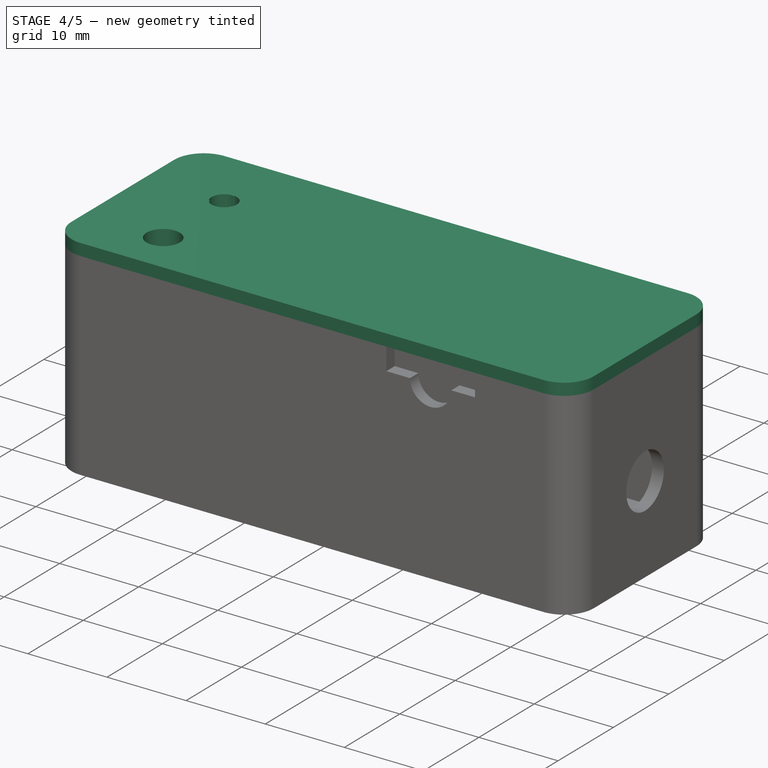
[diagram: stage 4 of 5 — iso view after this stage's code; geometry added in this stage tinted green]
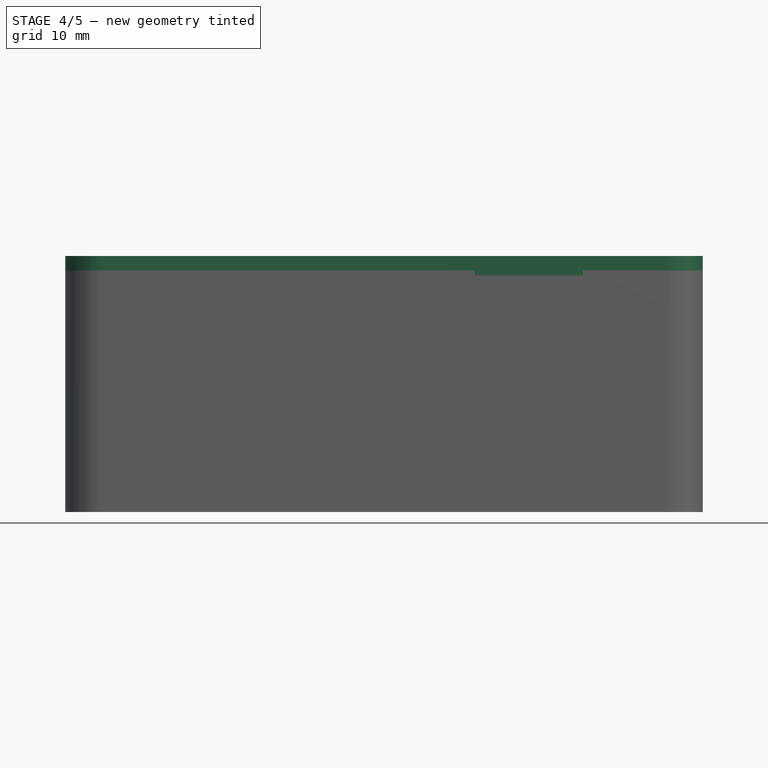
[diagram: stage 4 of 5 — front view after this stage's code; geometry added in this stage tinted green]
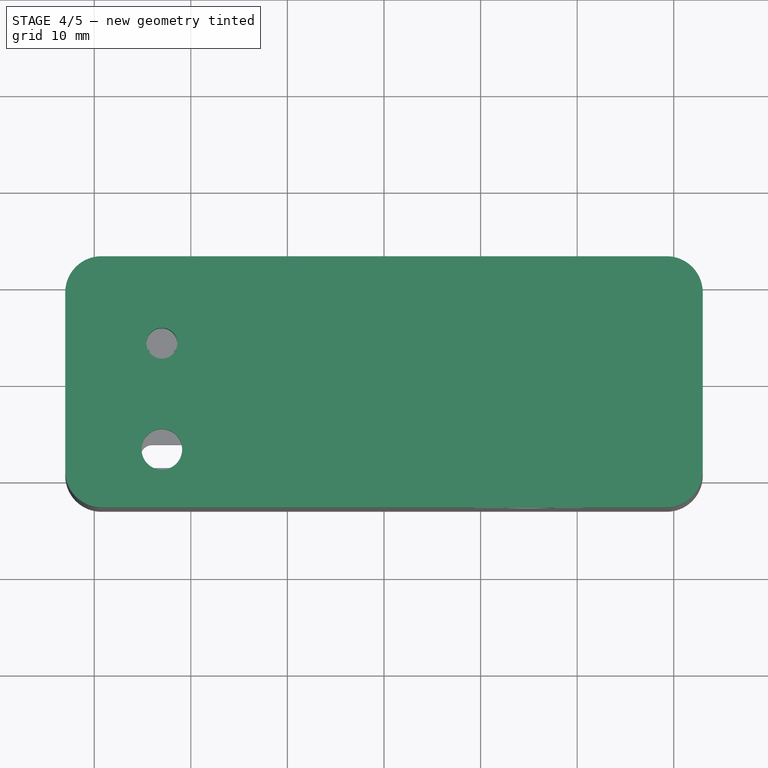
[diagram: stage 4 of 5 — top view after this stage's code; geometry added in this stage tinted green]
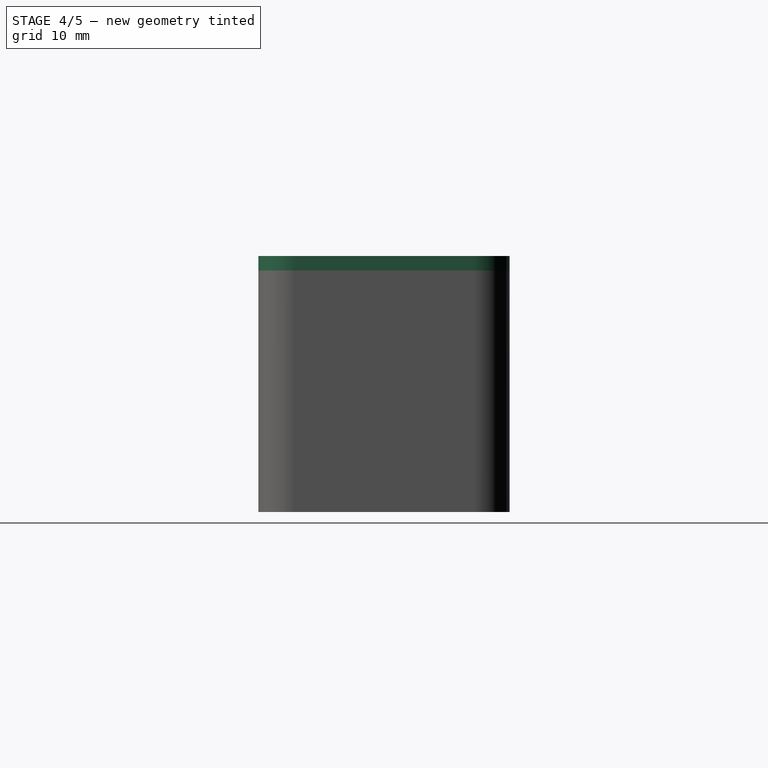
[diagram: stage 4 of 5 — right view after this stage's code; geometry added in this stage tinted green]
FEATURE [Part::FeaturePython] Screw  label="M2.5x20-Screw001"  # Fasteners workbench fastener (typed FeaturePython)
  Placement = pos=(28,-9,-15.5) rot=(1,0,0;3.14159rad)
  diameter = 1
  invert = false
  length = 8
  matchOuter = false
  offset = 0
  thread = false
  type = 19
FEATURE [Sketcher::SketchObject] Sketch003
  Placement = pos=(0,0,6) rot=(0,0,1;0rad)
  expr: Constraints[18] = Spreadsheet.case_outer_fil_angle
  expr: Constraints[16] = Spreadsheet.case_outer_fil_angle
  expr: Constraints[21] = Spreadsheet.case_outer_width
  expr: Constraints[20] = Spreadsheet.case_outer_length
  expr: Constraints[17] = Spreadsheet.case_outer_fil_angle
  expr: Constraints[19] = Spreadsheet.case_outer_fil_angle
  expr: Placement.Base.z = Spreadsheet.case_height_above_zero
  expr: Constraints[12] = Spreadsheet.case_outer_fil_radius
  sketch-geometry (8):
    g0: LineSegment StartX=-29.25 StartY=13 StartZ=0 EndX=29.25 EndY=13 EndZ=0
    g1: ArcOfCircle CenterX=29.25 CenterY=9.25 CenterZ=0 NormalX=0 NormalY=0 NormalZ=1 Radius=3.75 StartAngle=0 EndAngle=1.5708
    g2: LineSegment StartX=33 StartY=9.25 StartZ=0 EndX=33 EndY=-9.25 EndZ=0
    g3: ArcOfCircle CenterX=29.25 CenterY=-9.25 CenterZ=0 NormalX=0 NormalY=0 NormalZ=1 Radius=3.75 StartAngle=4.71239 EndAngle=6.28319
    g4: LineSegment StartX=29.25 StartY=-13 StartZ=0 EndX=-29.25 EndY=-13 EndZ=0
    g5: ArcOfCircle CenterX=-29.25 CenterY=-9.25 CenterZ=0 NormalX=0 NormalY=0 NormalZ=1 Radius=3.75 StartAngle=3.14159 EndAngle=4.71239
    g6: LineSegment StartX=-33 StartY=-9.25 StartZ=0 EndX=-33 EndY=9.25 EndZ=0
    g7: ArcOfCircle CenterX=-29.25 CenterY=9.25 CenterZ=0 NormalX=0 NormalY=0 NormalZ=1 Radius=3.75 StartAngle=1.5708 EndAngle=3.14159
  constraints (24):
    c: Horizontal(g0)
    c: Tangent(g0,g1) = 1.5708
    c: Coincident(g1,g2)
    c: Vertical(g2)
    c: Tangent(g2,g3) = 1.5708
    c: Coincident(g3,g4)
    c: Horizontal(g4)
    c: Tangent(g4,g5) = 1.5708
    c: Coincident(g5,g6)
    c: Vertical(g6)
    c: Tangent(g6,g7) = 1.5708
    c: Coincident(g7,g0)
    c: Radius(g7) = 3.75
    c: Equal(g7,g1)
    c: Equal(g7,g3)
    c: Equal(g7,g5)
    c: Angle(g7) = 1.5708
    c: Angle(g1) = 1.5708
    c: Angle(g3) = 1.5708
    c: Angle(g5) = 1.5708
    c: DistanceX(g6,g1) = 66
    c: DistanceY(g4,g0) = 26
    c: Symmetric(g5,g6,g-1)
    c: Symmetric(g0,g0,g-2)
FEATURE [PartDesign::Pad] Pad002  label="Pad002_top"
  Length = 1.5
  Length2 = 100
  Placement = pos=(0,0,6) rot=(0,0,1;0rad)
  Sketch = -> Sketch003
  Type = 0
FEATURE [Sketcher::SketchObject] Sketch004
  Placement = pos=(0,0,6) rot=(1,0,0;3.14159rad)
  Support = -> Pad002 [Face9]
  expr: Constraints[14] = Spreadsheet.case_inner_fil_angle
  expr: Constraints[16] = Spreadsheet.case_inner_fil_rad
  expr: Constraints[21] = Spreadsheet.case_inner_width - 0.4mm
  expr: Constraints[20] = Spreadsheet.case_inner_length - 0.4mm
  expr: Placement.Base.z = Spreadsheet.case_height_above_zero
  expr: Constraints[13] = Spreadsheet.case_inner_fil_angle
  expr: Constraints[12] = Spreadsheet.case_inner_fil_angle
  expr: Constraints[15] = Spreadsheet.case_inner_fil_angle
  sketch-geometry (8):
    g0: LineSegment StartX=-29.05 StartY=11.3 StartZ=0 EndX=29.05 EndY=11.3 EndZ=0
    g1: ArcOfCircle CenterX=29.05 CenterY=9.05 CenterZ=0 NormalX=0 NormalY=0 NormalZ=1 Radius=2.25 StartAngle=0 EndAngle=1.5708
    g2: LineSegment StartX=31.3 StartY=9.05 StartZ=0 EndX=31.3 EndY=-9.05 EndZ=0
    g3: ArcOfCircle CenterX=29.05 CenterY=-9.05 CenterZ=0 NormalX=0 NormalY=0 NormalZ=1 Radius=2.25 StartAngle=4.71239 EndAngle=6.28319
    g4: LineSegment StartX=29.05 StartY=-11.3 StartZ=0 EndX=-29.05 EndY=-11.3 EndZ=0
    g5: ArcOfCircle CenterX=-29.05 CenterY=-9.05 CenterZ=0 NormalX=0 NormalY=0 NormalZ=1 Radius=2.25 StartAngle=3.14159 EndAngle=4.71239
    g6: LineSegment StartX=-31.3 StartY=-9.05 StartZ=0 EndX=-31.3 EndY=9.05 EndZ=0
    g7: ArcOfCircle CenterX=-29.05 CenterY=9.05 CenterZ=0 NormalX=0 NormalY=0 NormalZ=1 Radius=2.25 StartAngle=1.5708 EndAngle=3.14159
  constraints (24):
    c: Horizontal(g0)
    c: Tangent(g0,g1) = 1.5708
    c: Coincident(g1,g2)
    c: Vertical(g2)
    c: Tangent(g2,g3) = 1.5708
    c: Coincident(g3,g4)
    c: Horizontal(g4)
    c: Tangent(g4,g5) = 1.5708
    c: Coincident(g5,g6)
    c: Vertical(g6)
    c: Tangent(g6,g7) = 1.5708
    c: Coincident(g7,g0)
    c: Angle(g7) = 1.5708
    c: Angle(g1) = 1.5708
    c: Angle(g3) = 1.5708
    c: Angle(g5) = 1.5708
    c: Radius(g7) = 2.25
    c: Equal(g7,g1)
    c: Equal(g7,g3)
    c: Equal(g7,g5)
    c: DistanceX(g6,g1) = 62.6
    c: DistanceY(g4,g0) = 22.6
    c: Symmetric(g4,g3,g-2)
    c: Symmetric(g6,g5,g-1)
FEATURE [PartDesign::Pad] Pad003  label="Pad003_top"
  Length = 0.5
  Length2 = 100
  Placement = pos=(0,0,6) rot=(0,0,1;0rad)
  Sketch = -> Sketch004
  Type = 0
FEATURE [Sketcher::SketchObject] Sketch005
  ExternalGeometry = -> [Pad003]
  Placement = pos=(0,0,5.5) rot=(1,0,0;3.14159rad)
  Support = -> Pad003 [Face19]
  expr: Constraints.Constraint28 = Spreadsheet.screw_dia_tap / 2
  expr: Constraints[39] = Spreadsheet.case_mnt_boss_radius
  expr: Constraints.Constraint21 = Spreadsheet.screw_dia_tap / 2
  expr: Constraints[38] = Spreadsheet.case_mnt_boss_radius
  expr: Constraints.Constraint8 = Spreadsheet.mnt_hole_y
  expr: Constraints.Constraint7 = Spreadsheet.mnt_hole_y / 2
  expr: Constraints.Constraint9 = Spreadsheet.mnt_hole_x
  expr: Constraints.Constraint6 = Spreadsheet.mnt_hole_x / 2
  expr: Constraints[45] = Spreadsheet.case_mnt_boss_radius
  expr: Constraints[41] = Spreadsheet.case_mnt_boss_radius
  sketch-geometry (14):
    g0: Circle CenterX=28 CenterY=9 CenterZ=0 NormalX=0 NormalY=0 NormalZ=1 Radius=1.025
    g1: Circle CenterX=-28 CenterY=-9 CenterZ=0 NormalX=0 NormalY=0 NormalZ=1 Radius=1.025
    g2: LineSegment StartX=-25.75 StartY=-9 StartZ=0 EndX=-25.75 EndY=-11.3 EndZ=0
    g3: LineSegment StartX=-25.75 StartY=-11.3 StartZ=0 EndX=-29.05 EndY=-11.3 EndZ=0
    g4: LineSegment StartX=-28 StartY=-6.75 StartZ=0 EndX=-31.3 EndY=-6.75 EndZ=0
    g5: LineSegment StartX=-31.3 StartY=-6.75 StartZ=0 EndX=-31.3 EndY=-9.05 EndZ=0
    g6: ArcOfCircle CenterX=-29.05 CenterY=-9.05 CenterZ=0 NormalX=0 NormalY=0 NormalZ=1 Radius=2.25 StartAngle=3.14159 EndAngle=4.71239
    g7: ArcOfCircle CenterX=28 CenterY=9 CenterZ=0 NormalX=0 NormalY=0 NormalZ=1 Radius=2.25 StartAngle=3.14159 EndAngle=4.71239
    g8: ArcOfCircle CenterX=29.05 CenterY=9.05 CenterZ=0 NormalX=0 NormalY=0 NormalZ=1 Radius=2.25 StartAngle=0 EndAngle=1.5708
    g9: LineSegment StartX=29.05 StartY=11.3 StartZ=0 EndX=25.75 EndY=11.3 EndZ=0
    g10: LineSegment StartX=25.75 StartY=11.3 StartZ=0 EndX=25.75 EndY=9 EndZ=0
    g11: LineSegment StartX=28 StartY=6.75 StartZ=0 EndX=31.3 EndY=6.75 EndZ=0
    g12: LineSegment StartX=31.3 StartY=9.05 StartZ=0 EndX=31.3 EndY=6.75 EndZ=0
    g13: ArcOfCircle CenterX=-28 CenterY=-9 CenterZ=0 NormalX=0 NormalY=0 NormalZ=1 Radius=2.25 StartAngle=6.28319 EndAngle=7.85398
  constraints (46):
    c: Radius(g1) = 1.025  'Constraint28'
    c: Radius(g0) = 1.025  'Constraint21'
    c: DistanceX(g1,g0) = 56  'Constraint9'
    c: DistanceY(g1,g0) = 18  'Constraint8'
    c: DistanceY(g1,g-1) = 9  'Constraint7'
    c: DistanceX(g1,g-1) = 28  'Constraint6'
    c: DistanceY(g2,g1) = 0
    c: Vertical(g2)
    c: DistanceY(g-7,g2) = 0
    c: Horizontal(g3)
    c: Vertical(g5)
    c: Coincident(g5,g6)
    c: Coincident(g3,g6)
    c: Coincident(g3,g-7)
    c: Coincident(g2,g3)
    c: Coincident(g5,g-6)
    c: Coincident(g5,g4)
    c: Coincident(g6,g-6)
    c: Horizontal(g9)
    c: Vertical(g10)
    c: Vertical(g12)
    c: Horizontal(g11)
    c: Angle(g7) = 1.5708
    c: DistanceY(g7,g0) = 0
    c: DistanceX(g0,g7) = 0
    c: DistanceX(g0,g7) = 0
    c: Coincident(g7,g11)
    c: Coincident(g7,g10)
    c: DistanceY(g-10,g10) = 0
    c: DistanceX(g11,g-10) = 0
    c: Coincident(g8,g-10)
    c: Coincident(g8,g-10)
    c: Coincident(g12,g8)
    c: Coincident(g11,g12)
    c: Coincident(g8,g9)
    c: Coincident(g8,g-3)
    c: Coincident(g9,g10)
    c: Coincident(g8,g-10)
    c: DistanceX(g1,g2) = 2.25
    c: DistanceY(g1,g4) = 2.25
    c: Angle(g13) = 1.5708
    c: Radius(g13) = 2.25
    c: Horizontal(g4)
    c: Coincident(g4,g13)
    c: Coincident(g1,g13)
    c: Radius(g7) = 2.25
FEATURE [PartDesign::Pad] Pad004  label="Pad004_top"
  Length = 4.6
  Length2 = 100
  Placement = pos=(0,0,6) rot=(0,0,1;0rad)
  Sketch = -> Sketch005
  Type = 0
FEATURE [Sketcher::SketchObject] Sketch006
  Placement = pos=(0,0,7.5) rot=(0,0,1;0rad)
  Support = -> Pad004 [Face5]
  sketch-geometry (7):
    g0: Circle CenterX=-23 CenterY=-7 CenterZ=0 NormalX=0 NormalY=0 NormalZ=1 Radius=2.1
    g1: ArcOfCircle CenterX=-23 CenterY=4 CenterZ=0 NormalX=0 NormalY=0 NormalZ=1 Radius=1.6 StartAngle=3.73228 EndAngle=5.68915
    g2: ArcOfCircle CenterX=-22.9973 CenterY=5.6 CenterZ=0 NormalX=0 NormalY=0 NormalZ=1 Radius=0.11 StartAngle=3.1743 EndAngle=6.24713
    g3: ArcOfCircle CenterX=-24.387 CenterY=3.20232 CenterZ=0 NormalX=0 NormalY=0 NormalZ=1 Radius=0.11 StartAngle=5.2687 EndAngle=8.34152
    g4: ArcOfCircle CenterX=-21.6157 CenterY=3.19769 CenterZ=0 NormalX=0 NormalY=0 NormalZ=1 Radius=0.11 StartAngle=1.07991 EndAngle=4.15274
    g5: ArcOfCircle CenterX=-23 CenterY=4 CenterZ=0 NormalX=0 NormalY=0 NormalZ=1 Radius=1.6 StartAngle=1.63789 EndAngle=3.59475
    g6: ArcOfCircle CenterX=-23 CenterY=4 CenterZ=0 NormalX=0 NormalY=0 NormalZ=1 Radius=1.6 StartAngle=5.82668 EndAngle=7.78355
  constraints (26):
    c: DistanceX(g0,g-1) = 23
    c: DistanceY(g0,g-1) = 7
    c: Radius(g0) = 2.1
    c: Radius(g1) = 1.6
    c: Radius(g4) = 0.11
    c: Equal(g4,g3)
    c: Equal(g4,g2)
    c: PointOnObject(g3,g1)
    c: Coincident(g1,g3)
    c: Equal(g1,g5)
    c: Coincident(g5,g2)
    c: Coincident(g1,g5)
    c: Coincident(g6,g2)
    c: Equal(g1,g6)
    c: Coincident(g1,g6)
    c: Coincident(g1,g4)
    c: PointOnObject(g5,g3)
    c: DistanceY(g-1,g1) = 4
    c: DistanceX(g1,g-1) = 23
    c: Coincident(g4,g6)
    c: Distance(g3,g1) = 1.6
    c: Distance(g1,g4) = 1.6
    c: Distance(g2,g1) = 1.6
    c: DistanceX(g3,g4) = 2.77128
    c: Distance(g3,g2) = 2.77128
    c: Distance(g2,g4) = 2.77128
FEATURE [PartDesign::Pocket] Pocket  label="Pocket_top"
  Length = 5
  Placement = pos=(0,0,6) rot=(0,0,1;0rad)
  Sketch = -> Sketch006
  Type = 2
FEATURE [Sketcher::SketchObject] Sketch008
  Placement = pos=(0,0,5.5) rot=(1,0,0;3.14159rad)
  Support = -> Pocket [Face21]
  sketch-geometry (2):
    g0: Circle CenterX=-23 CenterY=-4 CenterZ=0 NormalX=0 NormalY=0 NormalZ=1 Radius=1.6
    g1: Circle CenterX=-23 CenterY=-4 CenterZ=0 NormalX=0 NormalY=0 NormalZ=1 Radius=2
  constraints (5):
    c: Radius(g0) = 1.6
    c: Radius(g1) = 2
    c: DistanceX(g0,g-1) = 23
    c: DistanceY(g0,g-1) = 4
    c: Coincident(g1,g0)
FEATURE [PartDesign::Pad] Pad005  label="Pad005_top"
  Length = 3
  Length2 = 100
  Placement = pos=(0,0,6) rot=(0,0,1;0rad)
  Sketch = -> Sketch008
  Type = 0
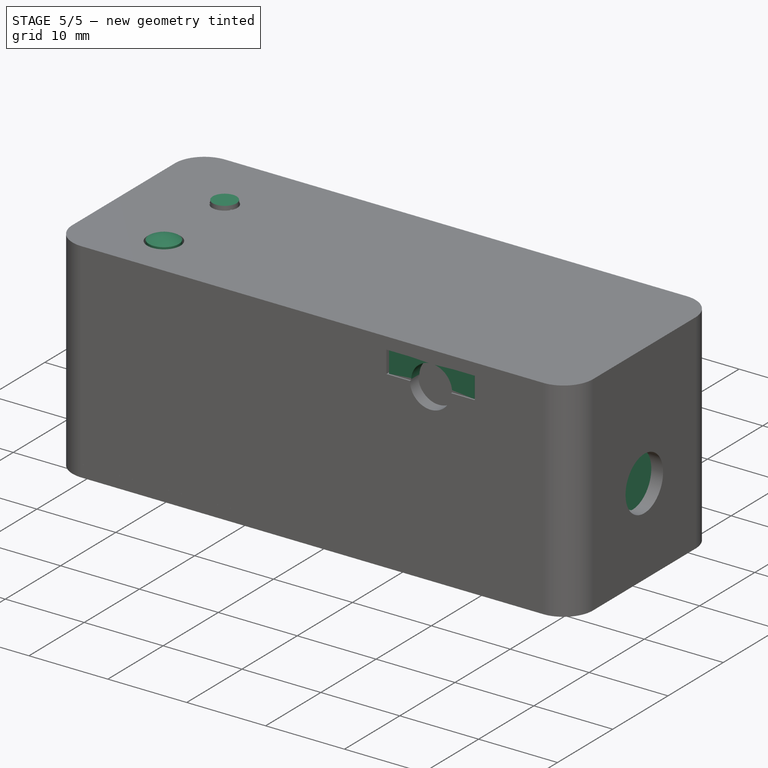
[diagram: stage 5 of 5 — iso view after this stage's code; geometry added in this stage tinted green]
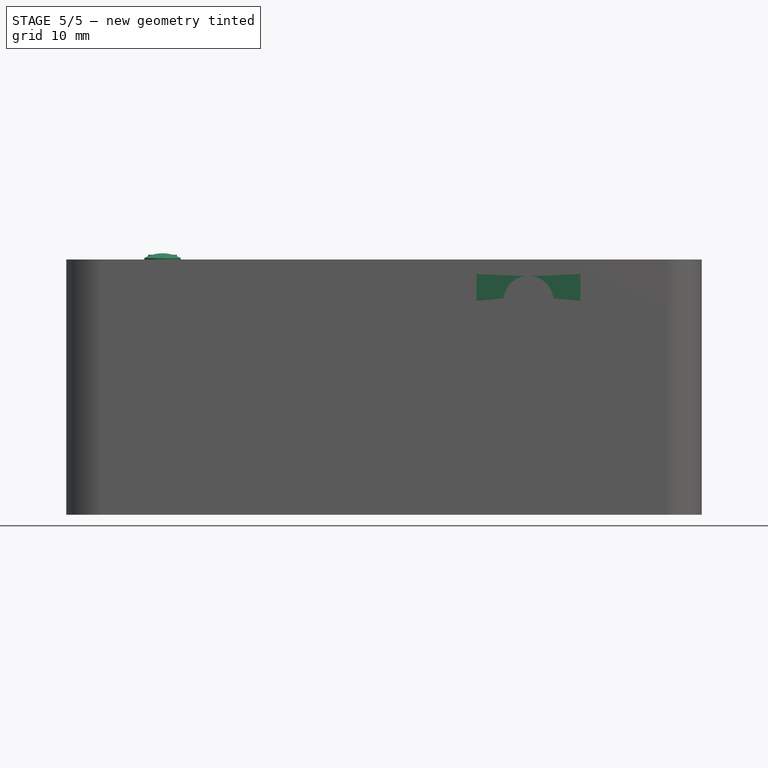
[diagram: stage 5 of 5 — front view after this stage's code; geometry added in this stage tinted green]
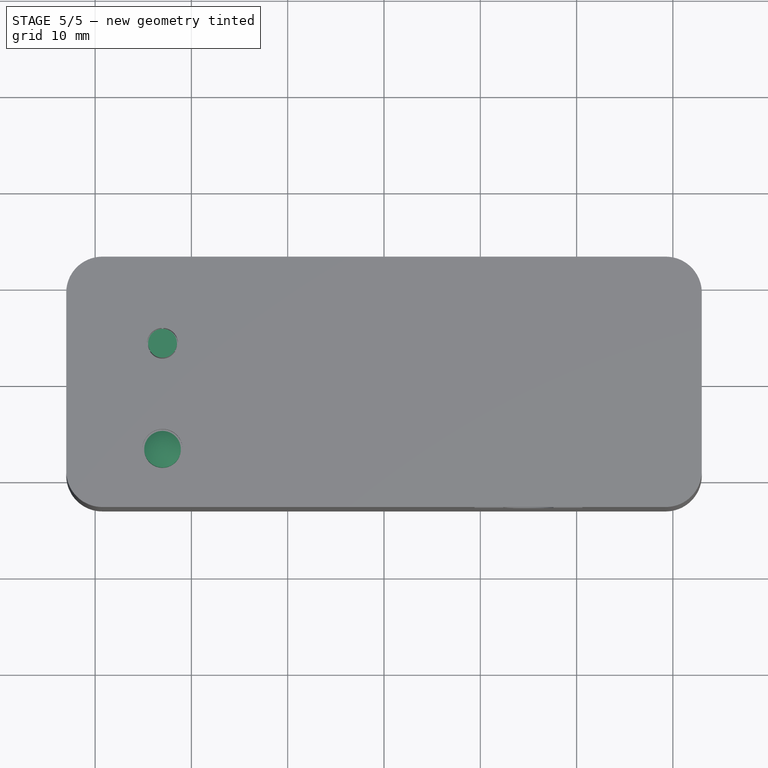
[diagram: stage 5 of 5 — top view after this stage's code; geometry added in this stage tinted green]
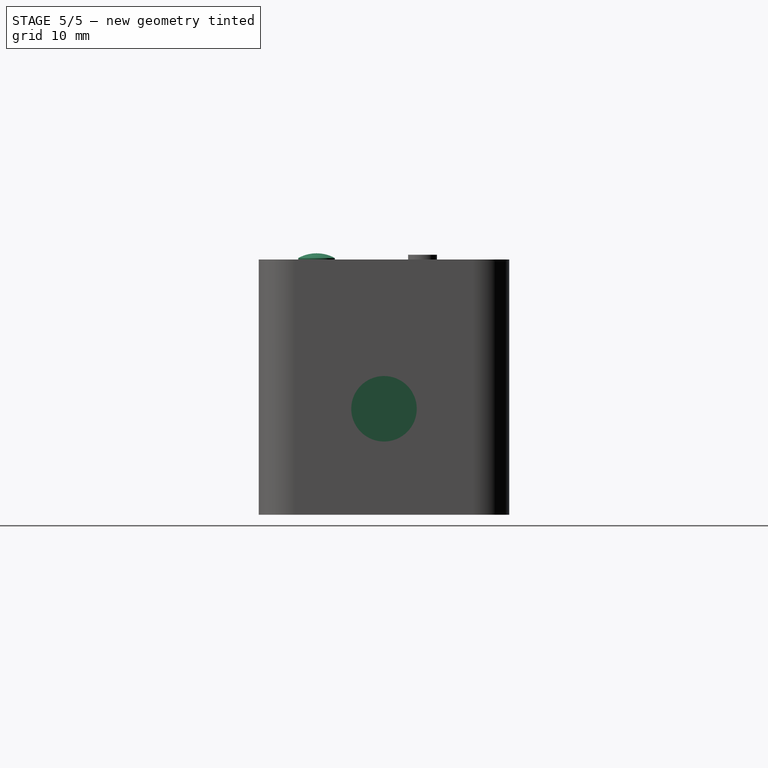
[diagram: stage 5 of 5 — right view after this stage's code; geometry added in this stage tinted green]
FEATURE [Sketcher::SketchObject] Sketch002
  Placement = pos=(0,0,-15.5) rot=(0,0,1;0rad)
  expr: Constraints[6] = Spreadsheet.case_inner_width / 2
  expr: Constraints[83] = Spreadsheet.case_mnt_boss_radius
  expr: Constraints[20] = Spreadsheet.case_inner_length / 2
  expr: Constraints[62] = Spreadsheet.case_mnt_boss_radius
  expr: Constraints[61] = Spreadsheet.case_mnt_boss_radius
  expr: Constraints[19] = Spreadsheet.case_inner_width / 2
  expr: Constraints[65] = Spreadsheet.case_mnt_boss_radius
  expr: Constraints[42] = Spreadsheet.mnt_hole_y / 2
  expr: Constraints[53] = Spreadsheet.case_inner_width / 2
  expr: Constraints[9] = Spreadsheet.case_inner_length / 2
  expr: Constraints[41] = Spreadsheet.mnt_hole_x / 2
  expr: Constraints[31] = Spreadsheet.case_inner_width / 2
  expr: Constraints[40] = Spreadsheet.mnt_hole_y / 2
  expr: Constraints[67] = Spreadsheet.case_mnt_boss_radius
  expr: Constraints[39] = Spreadsheet.mnt_hole_x / 2
  expr: Constraints[68] = Spreadsheet.case_mnt_boss_radius
  expr: Constraints[78] = Spreadsheet.case_mnt_boss_radius
  expr: Constraints[70] = Spreadsheet.case_mnt_boss_radius
  expr: Constraints[38] = Spreadsheet.mnt_hole_x / 2
  expr: Constraints[77] = Spreadsheet.case_mnt_boss_radius
  expr: Constraints[60] = Spreadsheet.case_mnt_boss_radius
  sketch-geometry (26):
    g0: LineSegment StartX=-25.75 StartY=9 StartZ=0 EndX=-25.75 EndY=11.5 EndZ=0
    g1: LineSegment StartX=-31.5 StartY=6.75 StartZ=0 EndX=-28 EndY=6.75 EndZ=0
    g2: Circle CenterX=-28 CenterY=9 CenterZ=0 NormalX=0 NormalY=0 NormalZ=1 Radius=1.3
    g3: Circle CenterX=28 CenterY=9 CenterZ=0 NormalX=0 NormalY=0 NormalZ=1 Radius=1.3
    g4: Circle CenterX=28 CenterY=-9 CenterZ=0 NormalX=0 NormalY=0 NormalZ=1 Radius=1.3
    g5: Circle CenterX=-28 CenterY=-9 CenterZ=0 NormalX=0 NormalY=0 NormalZ=1 Radius=1.3
    g6: LineSegment StartX=-25.75 StartY=11.5 StartZ=0 EndX=-29.5315 EndY=11.5 EndZ=0
    g7: LineSegment StartX=-31.5 StartY=9 StartZ=0 EndX=-31.5 EndY=6.75 EndZ=0
    g8: ArcOfCircle CenterX=-29.2657 CenterY=9.26575 CenterZ=0 NormalX=0 NormalY=0 NormalZ=1 Radius=2.25 StartAngle=1.68918 EndAngle=3.25998
    g9: ArcOfCircle CenterX=-29.2657 CenterY=-9.26575 CenterZ=0 NormalX=0 NormalY=0 NormalZ=1 Radius=2.25 StartAngle=3.02321 EndAngle=4.594
    g10: LineSegment StartX=-28 StartY=-6.75 StartZ=0 EndX=-31.5 EndY=-6.75 EndZ=0
    g11: LineSegment StartX=-31.5 StartY=-6.75 StartZ=0 EndX=-31.5 EndY=-9 EndZ=0
    g12: LineSegment StartX=-29.5315 StartY=-11.5 StartZ=0 EndX=-25.75 EndY=-11.5 EndZ=0
    g13: LineSegment StartX=-25.75 StartY=-11.5 StartZ=0 EndX=-25.75 EndY=-9 EndZ=0
    g14: ArcOfCircle CenterX=29.2657 CenterY=-9.26575 CenterZ=0 NormalX=0 NormalY=0 NormalZ=1 Radius=2.25 StartAngle=4.83078 EndAngle=6.40157
    g15: LineSegment StartX=25.75 StartY=-6.75 StartZ=0 EndX=25.75 EndY=-11.5 EndZ=0
    g16: LineSegment StartX=25.75 StartY=-11.5 StartZ=0 EndX=29.5315 EndY=-11.5 EndZ=0
    g17: LineSegment StartX=31.5 StartY=-9 StartZ=0 EndX=31.5 EndY=-6.75 EndZ=0
    g18: LineSegment StartX=31.5 StartY=-6.75 StartZ=0 EndX=25.75 EndY=-6.75 EndZ=0
    g19: ArcOfCircle CenterX=29 CenterY=9 CenterZ=0 NormalX=0 NormalY=0 NormalZ=1 Radius=2.5 StartAngle=0 EndAngle=1.5708
    g20: LineSegment StartX=29 StartY=11.5 StartZ=0 EndX=25.75 EndY=11.5 EndZ=0
    g21: LineSegment StartX=25.75 StartY=11.5 StartZ=0 EndX=25.75 EndY=6.75 EndZ=0
    g22: LineSegment StartX=31.5 StartY=9 StartZ=0 EndX=31.5 EndY=6.75 EndZ=0
    g23: LineSegment StartX=31.5 StartY=6.75 StartZ=0 EndX=25.75 EndY=6.75 EndZ=0
    g24: ArcOfCircle CenterX=-28 CenterY=9 CenterZ=0 NormalX=0 NormalY=0 NormalZ=1 Radius=2.25 StartAngle=4.71239 EndAngle=6.28319
    g25: ArcOfCircle CenterX=-28 CenterY=-9 CenterZ=0 NormalX=0 NormalY=0 NormalZ=1 Radius=2.25 StartAngle=1.2871e-08 EndAngle=1.5708
  constraints (84):
    c: Vertical(g0)
    c: Horizontal(g1)
    c: Radius(g3) = 1.3
    c: Horizontal(g6)
    c: Vertical(g7)
    c: Radius(g2) = 1.3
    c: DistanceY(g-1,g0) = 11.5
    c: Coincident(g0,g6)
    c: Angle(g8) = 1.5708
    c: DistanceX(g7,g-1) = 31.5
    c: Coincident(g1,g7)
    c: Coincident(g8,g7)
    c: Coincident(g8,g6)
    c: Radius(g5) = 1.3
    c: Vertical(g11)
    c: Horizontal(g12)
    c: Vertical(g13)
    c: Angle(g9) = 1.5708
    c: Horizontal(g10)
    c: DistanceY(g13,g-1) = 11.5
    c: DistanceX(g10,g-1) = 31.5
    c: Coincident(g12,g13)
    c: Coincident(g10,g11)
    c: Coincident(g9,g11)
    c: Coincident(g9,g12)
    c: Vertical(g15)
    c: Horizontal(g16)
    c: Vertical(g17)
    c: Horizontal(g18)
    c: Radius(g4) = 1.3
    c: DistanceX(g-1,g18) = 31.5
    c: DistanceY(g15,g-1) = 11.5
    c: Coincident(g16,g15)
    c: Coincident(g17,g18)
    c: Angle(g14) = 1.5708
    c: Coincident(g14,g17)
    c: Coincident(g14,g16)
    c: DistanceY(g-1,g3) = 9
    c: DistanceX(g3) = 28
    c: DistanceX(g2,g-1) = 28
    c: DistanceY(g-1,g2) = 9
    c: DistanceX(g5,g-1) = 28
    c: DistanceY(g5,g-1) = 9
    c: DistanceY(g5,g9) = 0
    c: DistanceX(g-1,g4) = 28
    c: DistanceY(g4,g-1) = 9
    c: DistanceY(g14,g4) = 0
    c: Horizontal(g20)
    c: Vertical(g21)
    c: Vertical(g22)
    c: Horizontal(g23)
    c: Angle(g19) = 1.5708
    c: DistanceX(g-1,g23) = 31.5
    c: DistanceY(g-1,g21) = 11.5
    c: Coincident(g20,g21)
    c: Coincident(g22,g23)
    c: DistanceY(g3,g19) = 0
    c: Coincident(g19,g22)
    c: Coincident(g19,g20)
    c: DistanceY(g3,g19) = 0
    c: Radius(g14) = 2.25
    c: DistanceX(g15,g4) = 2.25
    c: DistanceY(g4,g17) = 2.25
    c: Coincident(g15,g18)
    c: DistanceX(g20,g3) = 2.25
    c: DistanceY(g22,g22) = 2.25
    c: Coincident(g21,g23)
    c: Radius(g8) = 2.25
    c: DistanceX(g2,g0) = 2.25
    c: DistanceY(g7,g2) = 0
    c: DistanceY(g1,g2) = 2.25
    c: Angle(g24) = 1.5708
    c: Coincident(g24,g2)
    c: DistanceX(g2,g24) = 0
    c: Coincident(g1,g24)
    c: Coincident(g0,g24)
    c: DistanceY(g5,g10) = 2.25
    c: DistanceX(g5,g12) = 2.25
    c: Radius(g25) = 2.25
    c: Angle(g25) = 1.5708
    c: Coincident(g25,g5)
    c: Coincident(g10,g25)
    c: Coincident(g13,g25)
    c: Radius(g9) = 2.25
FEATURE [PartDesign::Pad] Pad001  label="Pad001_bosses"
  Length = 14.7
  Length2 = 100
  Placement = pos=(0,0,-15.5) rot=(0,0,1;0rad)
  Sketch = -> Sketch002
  Type = 0
  expr: Length = Spreadsheet.case_mnt_boss_height
FEATURE [Sketcher::SketchObject] Sketch007
  Placement = pos=(0,0,0) rot=(1,0,0;1.5708rad)
  sketch-geometry (6):
    g0: LineSegment StartX=-23 StartY=8.14487 StartZ=0 EndX=-23 EndY=4.25 EndZ=0
    g1: LineSegment StartX=-23 StartY=4.25 StartZ=0 EndX=-25.9 EndY=4.25 EndZ=0
    g2: LineSegment StartX=-25.9 StartY=4.25 StartZ=0 EndX=-25.9 EndY=5.45 EndZ=0
    g3: LineSegment StartX=-25.9 StartY=5.45 StartZ=0 EndX=-24.9 EndY=5.45 EndZ=0
    g4: LineSegment StartX=-24.9 StartY=5.45 StartZ=0 EndX=-24.9 EndY=7.65 EndZ=0
    g5: ArcOfCircle CenterX=-23 CenterY=4.25 CenterZ=0 NormalX=0 NormalY=0 NormalZ=1 Radius=3.89487 StartAngle=1.5708 EndAngle=2.08039
  constraints (18):
    c: Vertical(g0)
    c: Coincident(g0,g1)
    c: Horizontal(g1)
    c: Coincident(g1,g2)
    c: Vertical(g2)
    c: Coincident(g2,g3)
    c: Horizontal(g3)
    c: Coincident(g3,g4)
    c: Vertical(g4)
    c: Coincident(g4,g5)
    c: Coincident(g0,g5)
    c: DistanceX(g4,g0) = 1.9
    c: DistanceX(g3,g3) = 1
    c: Coincident(g5,g0)
    c: DistanceX(g0,g-1) = 23
    c: DistanceY(g-1,g0) = 4.25
    c: DistanceY(g2,g2) = 1.2
    c: DistanceY(g4,g4) = 2.2
FEATURE [Part::Revolution] Revolve  label="Revolve_button"
  Angle = 360
  Axis = (0,0,-1)
  Base = (-23,0,8)
  Placement = pos=(0,-7,0) rot=(0,0,1;0rad)
  Solid = true
  Source = -> Sketch007
FEATURE [Sketcher::SketchObject] Sketch009
  Placement = pos=(0,0,8) rot=(0,0,1;0rad)
  sketch-geometry (1):
    g0: Circle CenterX=-23 CenterY=4 CenterZ=0 NormalX=0 NormalY=0 NormalZ=1 Radius=1.5
  constraints (3):
    c: Radius(g0) = 1.5
    c: DistanceY(g-1,g0) = 4
    c: DistanceX(g0,g-1) = 23
FEATURE [PartDesign::Pad] Pad006  label="Pad006_light_guide"
  Length = 6
  Length2 = 100
  Placement = pos=(0,0,8) rot=(0,0,1;0rad)
  Reversed = true
  Sketch = -> Sketch009
  Type = 0
FEATURE [Part::Feature] Part__Feature001  label="nut_quarter_inch"
  Placement = pos=(26,0,-8) rot=(1,0,0;0.523599rad)
  shape: bbox 5.556 x 12.83 x 12.83 mm, 26 faces (baked)
FEATURE [Sketcher::SketchObject] Sketch018
  Placement = pos=(31.6,0,0) rot=(0.57735,0.57735,0.57735;2.0944rad)
  expr: Constraints[24] = Spreadsheet.case_mnt_boss_height
  expr: Placement.Base.x = Spreadsheet.case_inner_length / 2 + 0.1mm
  expr: Constraints[13] = Spreadsheet.mnt_hole_y / 2 - Spreadsheet.screw_dia_hole / 2
  sketch-geometry (10):
    g0: LineSegment StartX=-6.6 StartY=-8.08577 StartZ=0 EndX=-3.3 EndY=-2.37 EndZ=0
    g1: LineSegment StartX=-3.3 StartY=-2.37 StartZ=0 EndX=3.3 EndY=-2.37 EndZ=0
    g2: LineSegment StartX=3.3 StartY=-2.37 StartZ=0 EndX=6.6 EndY=-8.08577 EndZ=0
    g3: LineSegment StartX=7.7 StartY=-15.52 StartZ=0 EndX=7.7 EndY=-0.82 EndZ=0
    g4: LineSegment StartX=7.7 StartY=-0.82 StartZ=0 EndX=-7.7 EndY=-0.82 EndZ=0
    g5: LineSegment StartX=-7.7 StartY=-0.82 StartZ=0 EndX=-7.7 EndY=-15.52 EndZ=0
    g6: LineSegment StartX=-6.6 StartY=-8.08577 StartZ=0 EndX=-6.6 EndY=-15.52 EndZ=0
    g7: LineSegment StartX=-6.6 StartY=-15.52 StartZ=0 EndX=-7.7 EndY=-15.52 EndZ=0
    g8: LineSegment StartX=6.6 StartY=-8.08577 StartZ=0 EndX=6.6 EndY=-15.52 EndZ=0
    g9: LineSegment StartX=6.6 StartY=-15.52 StartZ=0 EndX=7.7 EndY=-15.52 EndZ=0
  constraints (30):
    c: Coincident(g0,g1)
    c: Coincident(g1,g2)
    c: Coincident(g3,g4)
    c: Horizontal(g4)
    c: Coincident(g4,g5)
    c: Equal(g1,g0)
    c: Equal(g0,g2)
    c: Symmetric(g0,g1,g-2)
    c: Symmetric(g4,g3,g-2)
    c: DistanceX(g1,g1) = 6.6
    c: Angle(g0,g1) = 2.0944
    c: Angle(g1,g2) = 2.0944
    c: Vertical(g5)
    c: DistanceX(g4,g-1) = 7.7
    c: DistanceY(g4,g-1) = 0.82
    c: Coincident(g0,g6)
    c: Vertical(g6)
    c: Coincident(g6,g7)
    c: Horizontal(g7)
    c: Coincident(g2,g8)
    c: Vertical(g8)
    c: Coincident(g8,g9)
    c: Horizontal(g9)
    c: Equal(g5,g3)
    c: DistanceY(g5,g5) = 14.7
    c: Coincident(g5,g7)
    c: Coincident(g3,g9)
    c: Equal(g6,g8)
    c: Equal(g7,g9)
    c: DistanceY(g0,g4) = 1.55
FEATURE [PartDesign::Pad] Pad011  label="Pad011_nut"
  Length = 5.65
  Length2 = 100
  Placement = pos=(31.6,0,0) rot=(0.57735,0.57735,0.57735;2.0944rad)
  Reversed = true
  Sketch = -> Sketch018
  Type = 0
FEATURE [Sketcher::SketchObject] Sketch019
  ExternalGeometry = -> [Pad011]
  Placement = pos=(25.95,0,0) rot=(0.57735,0.57735,-0.57735;4.18879rad)
  Support = -> Pad011 [Face12]
  expr: Constraints[11] = Spreadsheet.case_mnt_boss_height
  expr: Constraints[8] = Spreadsheet.case_inner_width
  sketch-geometry (4):
    g0: LineSegment StartX=-11.5 StartY=15.52 StartZ=0 EndX=11.5 EndY=15.52 EndZ=0
    g1: LineSegment StartX=11.5 StartY=15.52 StartZ=0 EndX=11.5 EndY=0.82 EndZ=0
    g2: LineSegment StartX=11.5 StartY=0.82 StartZ=0 EndX=-11.5 EndY=0.82 EndZ=0
    g3: LineSegment StartX=-11.5 StartY=0.82 StartZ=0 EndX=-11.5 EndY=15.52 EndZ=0
  constraints (12):
    c: Coincident(g0,g1)
    c: Coincident(g1,g2)
    c: Coincident(g2,g3)
    c: Coincident(g3,g0)
    c: Horizontal(g0)
    c: Horizontal(g2)
    c: Vertical(g1)
    c: Vertical(g3)
    c: DistanceX(g0,g0) = 23
    c: Symmetric(g0,g0,g-2)
    c: DistanceY(g-3,g2) = 0
    c: DistanceY(g3,g3) = 14.7
FEATURE [PartDesign::Pad] Pad012  label="Pad012_nut"
  Length = 1
  Length2 = 100
  Placement = pos=(31.6,0,0) rot=(0.57735,0.57735,0.57735;2.0944rad)
  Sketch = -> Sketch019
  Type = 0
FEATURE [Sketcher::SketchObject] Sketch023
  ExternalGeometry = -> [Pad005]
  Placement = pos=(0,-11.3,6) rot=(1,0,0;1.5708rad)
  Support = -> Pad005 [Face11]
  sketch-geometry (6):
    g0: LineSegment StartX=9.6 StartY=0 StartZ=0 EndX=20.4 EndY=0 EndZ=0
    g1: LineSegment StartX=20.4 StartY=0 StartZ=0 EndX=20.4 EndY=-2.8 EndZ=0
    g2: LineSegment StartX=20.4 StartY=-2.8 StartZ=0 EndX=17.6 EndY=-2.8 EndZ=0
    g3: ArcOfCircle CenterX=15 CenterY=-2.8 CenterZ=0 NormalX=0 NormalY=0 NormalZ=1 Radius=2.6 StartAngle=0 EndAngle=3.14159
    g4: LineSegment StartX=12.4 StartY=-2.8 StartZ=0 EndX=9.6 EndY=-2.8 EndZ=0
    g5: LineSegment StartX=9.6 StartY=-2.8 StartZ=0 EndX=9.6 EndY=0 EndZ=0
  constraints (18):
    c: Horizontal(g0)
    c: Coincident(g0,g1)
    c: Vertical(g1)
    c: Coincident(g1,g2)
    c: Horizontal(g2)
    c: Perpendicular(g2,g3) = 4.71239
    c: Radius(g3) = 2.6
    c: Horizontal(g4)
    c: Vertical(g5)
    c: Coincident(g0,g5)
    c: Coincident(g4,g3)
    c: Coincident(g5,g4)
    c: Equal(g4,g2)
    c: Equal(g5,g1)
    c: DistanceX(g-1,g3) = 15
    c: DistanceX(g4,g4) = 2.8
    c: DistanceY(g1,g1) = 2.8
    c: DistanceY(g0,g-1) = 0
FEATURE [PartDesign::Pad] Pad014  label="Pad014_top"
  Length = 1.5
  Length2 = 100
  Placement = pos=(0,0,6) rot=(0,0,1;0rad)
  Sketch = -> Sketch023
  Type = 0
  expr: Length = Spreadsheet.case_thickness
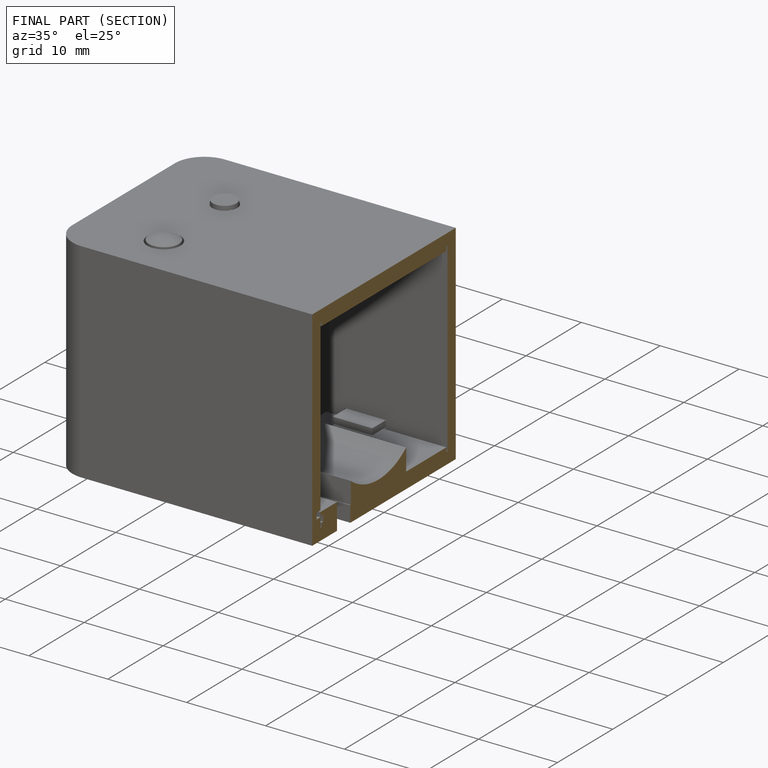
[diagram: finished part — half-section view (interior)]
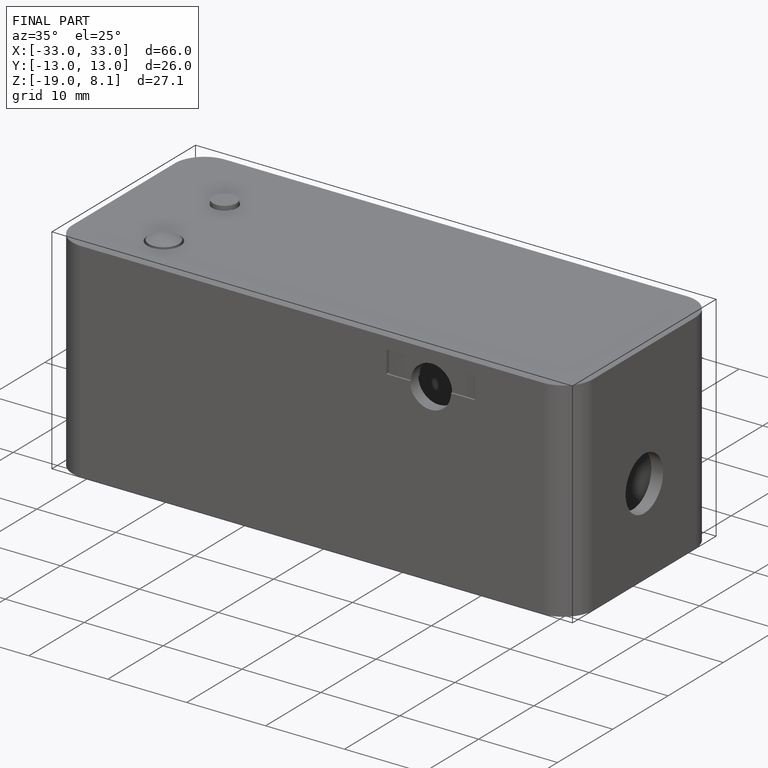
[diagram: finished part — iso view with bounding-box wireframe]
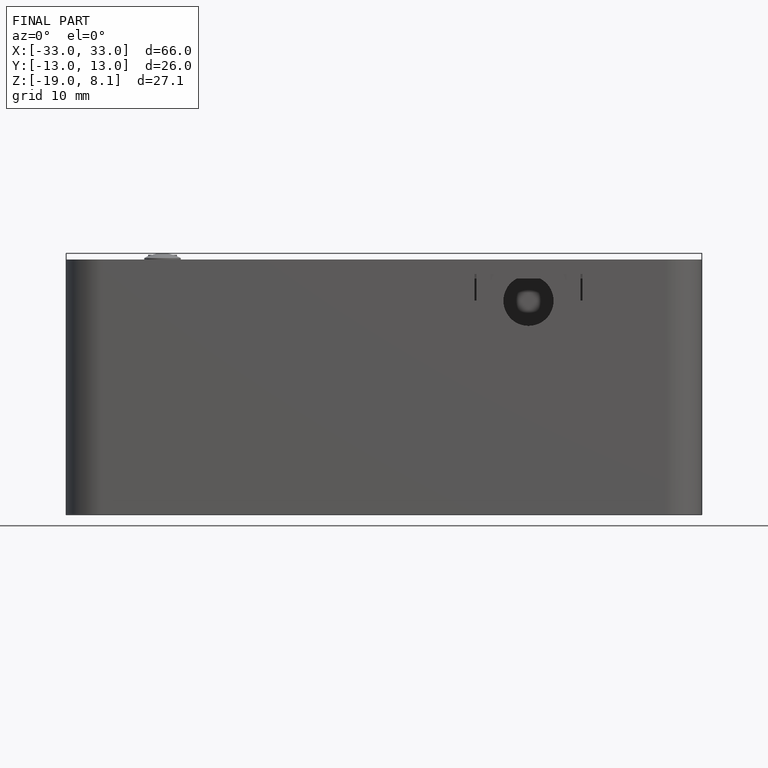
[diagram: finished part — front view with bounding-box wireframe]
